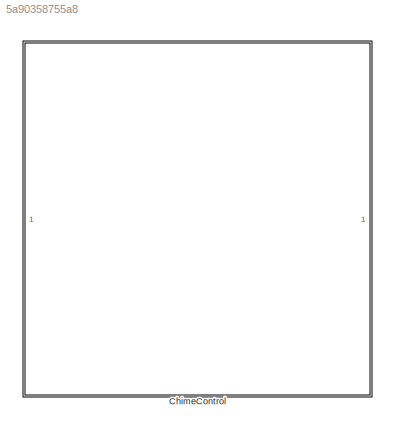
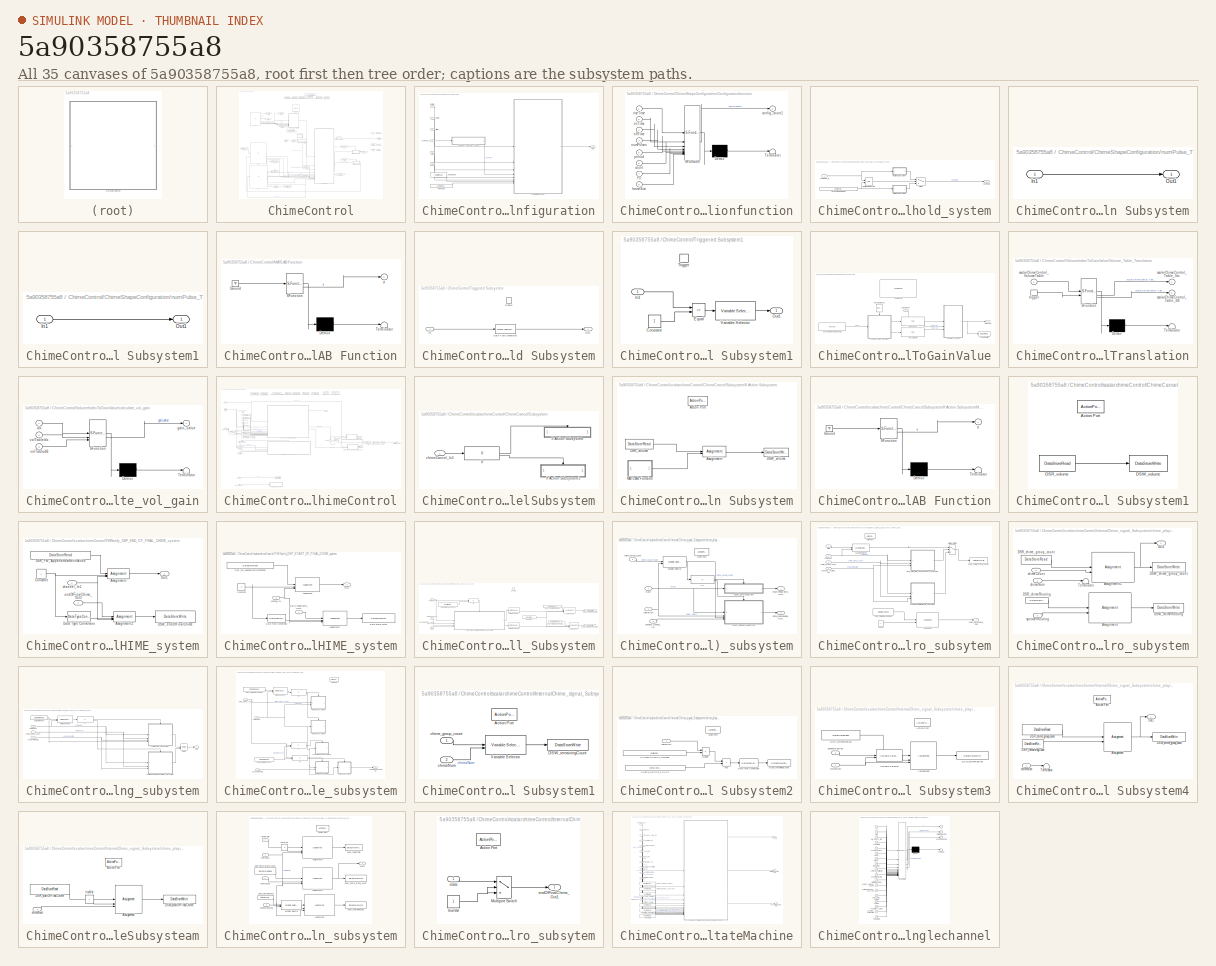
[diagram: thumbnail index - all 35 canvases of the model, root first then tree order]
MODEL slx_5a90358755a8
KIND library
CONFIG AbsTol = auto
CONFIG EnableMultiTasking = off
CONFIG FixedStep = auto
CONFIG MaxStep = auto
CONFIG MinStep = auto
CONFIG RelTol = 1e-3
CONFIG SampleTimeConstraint = Unconstrained
CONFIG SolverName = VariableStepAuto
CONFIG StartTime = 0.0
CONFIG StopTime = 10.0
BLOCK [SubSystem] ChimeControl
BLOCK [SubSystem] ChimeControl/ChimeShapeConfiguration
BLOCK [SubSystem] ChimeControl/ChimeShapeConfiguration/Configurationfunction
  ErrorFcn = Stateflow.Translate.translate
  PermitHierarchicalResolution = ExplicitOnly
  SFBlockType = MATLAB Function
  TreatAsAtomicUnit = on
BLOCK [Demux] ChimeControl/ChimeShapeConfiguration/Configurationfunction/ Demux 
  Outputs = 1
BLOCK [S-Function] ChimeControl/ChimeShapeConfiguration/Configurationfunction/ SFunction 
  EnableBusSupport = off
  FunctionName = sf_sfun
  PortCounts = [8 2]
  SFcnIsStateOwnerBlock = off
  SFunctionDeploymentMode = off
  Tag = Stateflow S-Function 16
BLOCK [Terminator] ChimeControl/ChimeShapeConfiguration/Configurationfunction/ Terminator 
BLOCK [Inport] ChimeControl/ChimeShapeConfiguration/Configurationfunction/Fs
  Port = 7
BLOCK [Outport] ChimeControl/ChimeShapeConfiguration/Configurationfunction/config_count1
  VectorParamsAs1DForOutWhenUnconnected = off
BLOCK [Inport] ChimeControl/ChimeShapeConfiguration/Configurationfunction/count
  Port = 6
BLOCK [Inport] ChimeControl/ChimeShapeConfiguration/Configurationfunction/frameSize
  Port = 8
BLOCK [Inport] ChimeControl/ChimeShapeConfiguration/Configurationfunction/numPulses
  Port = 4
BLOCK [Inport] ChimeControl/ChimeShapeConfiguration/Configurationfunction/offTime
  Port = 3
BLOCK [Inport] ChimeControl/ChimeShapeConfiguration/Configurationfunction/onTime
  Port = 2
BLOCK [Inport] ChimeControl/ChimeShapeConfiguration/Configurationfunction/period
  Port = 5
BLOCK [Inport] ChimeControl/ChimeShapeConfiguration/Configurationfunction/riseTime
BLOCK [Constant] ChimeControl/ChimeShapeConfiguration/FrameSIZE
  OutDataTypeStr = single
  Value = Config.FrameSizeSamples
BLOCK [Inport] ChimeControl/ChimeShapeConfiguration/Offtime
  Port = 3
BLOCK [Inport] ChimeControl/ChimeShapeConfiguration/Ontime
  Port = 2
BLOCK [Outport] ChimeControl/ChimeShapeConfiguration/Out1
  VectorParamsAs1DForOutWhenUnconnected = off
BLOCK [Constant] ChimeControl/ChimeShapeConfiguration/SampleRate
  OutDataTypeStr = single
  Value = Config.FsHz
BLOCK [Inport] ChimeControl/ChimeShapeConfiguration/count
  Port = 6
BLOCK [SubSystem] ChimeControl/ChimeShapeConfiguration/numPulse_Threshold_system
BLOCK [SubSystem] ChimeControl/ChimeShapeConfiguration/numPulse_Threshold_system/If Action Subsystem
  TreatAsAtomicUnit = on
BLOCK [Inport] ChimeControl/ChimeShapeConfiguration/numPulse_Threshold_system/If Action Subsystem/In1
BLOCK [Outport] ChimeControl/ChimeShapeConfiguration/numPulse_Threshold_system/If Action Subsystem/Out1
  VectorParamsAs1DForOutWhenUnconnected = off
BLOCK [SubSystem] ChimeControl/ChimeShapeConfiguration/numPulse_Threshold_system/If Action Subsystem1
  TreatAsAtomicUnit = on
BLOCK [Inport] ChimeControl/ChimeShapeConfiguration/numPulse_Threshold_system/If Action Subsystem1/In1
BLOCK [Outport] ChimeControl/ChimeShapeConfiguration/numPulse_Threshold_system/If Action Subsystem1/Out1
  VectorParamsAs1DForOutWhenUnconnected = off
BLOCK [RelationalOperator] ChimeControl/ChimeShapeConfiguration/numPulse_Threshold_system/Relational Operator
  InputSameDT = off
  OutDataTypeStr = boolean
  RndMeth = Simplest
BLOCK [Switch] ChimeControl/ChimeShapeConfiguration/numPulse_Threshold_system/Switch
  Criteria = u2 ~= 0
  InputSameDT = off
  SaturateOnIntegerOverflow = off
BLOCK [Outport] ChimeControl/ChimeShapeConfiguration/numPulse_Threshold_system/numPulse
  VectorParamsAs1DForOutWhenUnconnected = off
BLOCK [Inport] ChimeControl/ChimeShapeConfiguration/numPulse_Threshold_system/numPulse_In
BLOCK [Constant] ChimeControl/ChimeShapeConfiguration/numPulse_Threshold_system/thresholdNumPulse
  OutDataTypeStr = single
  Value = Config.ThresholdNumPulse
  VectorParams1D = off
BLOCK [Inport] ChimeControl/ChimeShapeConfiguration/numPulses
  Port = 4
BLOCK [Inport] ChimeControl/ChimeShapeConfiguration/period
  Port = 5
BLOCK [Inport] ChimeControl/ChimeShapeConfiguration/risetime
BLOCK [DataStoreMemory] ChimeControl/DSM_chimeType
  DataStoreName = chimeType
  ShowAdditionalParam = off
BLOCK [DataStoreMemory] ChimeControl/DSM_chime_group_count
  DataStoreName = chime_group_count
  InitialValue = ones(1, Config.Nch)
  ShowAdditionalParam = off
  SignalType = real
BLOCK [DataStoreMemory] ChimeControl/DSM_externalChimeVolume
  DataStoreName = externalChimeVolume
  InitialValue = zeros(1,Config.Nch)
  ShowAdditionalParam = off
BLOCK [DataStoreMemory] ChimeControl/DSM_leftLocation
  DataStoreName = leftLocation
  ShowAdditionalParam = off
BLOCK [DataStoreMemory] ChimeControl/DSM_rightLocation
  DataStoreName = rightLocation
  ShowAdditionalParam = off
BLOCK [DataStoreMemory] ChimeControl/DSM_volume
  DataStoreName = volume
  InitialValue = Config.Volume
  ShowAdditionalParam = off
  SignalType = real
BLOCK [DataStoreRead] ChimeControl/DSR_chime_group_count
  DataStoreName = chime_group_count
  IndexOptions = Index vector (dialog)
  Indices = 1
  OutputSizes = 1
BLOCK [DataStoreWrite] ChimeControl/DSW_chime_group_count
  DataStoreName = chime_group_count
  IndexOptions = Index vector (dialog)
  Indices = 1
  OutputSizes = 1
BLOCK [DataTypeConversion] ChimeControl/Data Type Conversion
  OutDataTypeStr = single
  RndMeth = Floor
  SaturateOnIntegerOverflow = off
BLOCK [Reference] ChimeControl/FeaturePath  REF=FeaturePath/FeaturePath
  SourceBlock = FeaturePath/FeaturePath
  SourceType = Talaria Feature Path
BLOCK [From] ChimeControl/From
  GotoTag = fallTime
BLOCK [From] ChimeControl/From1
  GotoTag = volume
BLOCK [From] ChimeControl/From2
  GotoTag = RTC2_check_done
BLOCK [From] ChimeControl/From3
  GotoTag = chimeEndNotification
BLOCK [From] ChimeControl/From4
  GotoTag = playback_NTF_done
BLOCK [From] ChimeControl/From5
  GotoTag = riseTime
BLOCK [From] ChimeControl/From6
  GotoTag = numGroupCount
BLOCK [From] ChimeControl/From7
  GotoTag = chimeType
BLOCK [Goto] ChimeControl/Goto
  GotoTag = numGroupCount
BLOCK [Goto] ChimeControl/Goto1
  GotoTag = volume
BLOCK [Goto] ChimeControl/Goto2
  GotoTag = chimeType
BLOCK [Goto] ChimeControl/Goto3
  GotoTag = RTC2_check_done
BLOCK [Goto] ChimeControl/Goto4
  GotoTag = chimeEndNotification
BLOCK [Goto] ChimeControl/Goto5
  GotoTag = playback_NTF_done
BLOCK [Goto] ChimeControl/Goto6
  GotoTag = riseTime
BLOCK [Goto] ChimeControl/Goto7
  GotoTag = fallTime
BLOCK [Reference] ChimeControl/HandyDefaultConfigFile  REF=HandyTextFile/HandyTextFile
  SourceBlock = HandyTextFile/HandyTextFile
  SourceType = Talaria Handy Text File
BLOCK [SubSystem] ChimeControl/MATLAB Function
  ErrorFcn = Stateflow.Translate.translate
  PermitHierarchicalResolution = ExplicitOnly
  SFBlockType = MATLAB Function
  TreatAsAtomicUnit = on
BLOCK [Demux] ChimeControl/MATLAB Function/ Demux 
  Outputs = 1
BLOCK [Ground] ChimeControl/MATLAB Function/ Ground 
BLOCK [S-Function] ChimeControl/MATLAB Function/ SFunction 
  EnableBusSupport = off
  FunctionName = sf_sfun
  Parameters = nch
  PortCounts = [1 2]
  SFcnIsStateOwnerBlock = off
  SFunctionDeploymentMode = off
  Tag = Stateflow S-Function 4
BLOCK [Terminator] ChimeControl/MATLAB Function/ Terminator 
BLOCK [Outport] ChimeControl/MATLAB Function/y
BLOCK [Reference] ChimeControl/RTC1  REF=RTC/RTC
  SourceBlock = RTC/RTC
  SourceType = Talaria RTC Receive
BLOCK [Reference] ChimeControl/RTC2  REF=RTC/RTC
  SourceBlock = RTC/RTC
  SourceType = Talaria RTC Receive
BLOCK [Reference] ChimeControl/RTC3  REF=RTC/RTC
  SourceBlock = RTC/RTC
  SourceType = Talaria RTC Receive
BLOCK [Outport] ChimeControl/Scalar_Control_Output
  Port = 2
  VectorParamsAs1DForOutWhenUnconnected = off
BLOCK [Math] ChimeControl/Transpose
  Operator = transpose
  SignedPower = on
BLOCK [Math] ChimeControl/Transpose1
  Operator = transpose
  SignedPower = on
BLOCK [Math] ChimeControl/Transpose2
  Operator = transpose
  SignedPower = on
BLOCK [SubSystem] ChimeControl/Triggered Subsystem
  TreatAsAtomicUnit = on
BLOCK [DataTypeConversion] ChimeControl/Triggered Subsystem/Data Type Conversion
  OutDataTypeStr = int32
  RndMeth = Floor
  SaturateOnIntegerOverflow = off
BLOCK [EnablePort] ChimeControl/Triggered Subsystem/Enable
BLOCK [Inport] ChimeControl/Triggered Subsystem/In1
BLOCK [Outport] ChimeControl/Triggered Subsystem/Out1
  VectorParamsAs1DForOutWhenUnconnected = off
BLOCK [SubSystem] ChimeControl/Triggered Subsystem1
  TreatAsAtomicUnit = on
BLOCK [Constant] ChimeControl/Triggered Subsystem1/Constant
BLOCK [RelationalOperator] ChimeControl/Triggered Subsystem1/Equal
  InputSameDT = off
  Operator = ==
  OutDataTypeStr = boolean
  RndMeth = Simplest
BLOCK [Inport] ChimeControl/Triggered Subsystem1/In1
BLOCK [Outport] ChimeControl/Triggered Subsystem1/Out1
  VectorParamsAs1DForOutWhenUnconnected = off
BLOCK [TriggerPort] ChimeControl/Triggered Subsystem1/Trigger
  StatesWhenEnabling = held
  TriggerType = function-call
  VariantControl = Variant
BLOCK [Reference] ChimeControl/Triggered Subsystem1/Variable Selector  REF=dspindex/Variable
Selector
  SourceBlock = dspindex/Variable\nSelector
  SourceType = Variable Selector
BLOCK [SubSystem] ChimeControl/VolumeIndexToGainValue
BLOCK [DataStoreWrite] ChimeControl/VolumeIndexToGainValue/Data Store Write
  DataStoreName = volume
  IndexOptions = Index vector (dialog)
  Indices = 1
  OutputSizes = 1
BLOCK [Reference] ChimeControl/VolumeIndexToGainValue/FeaturePath  REF=FeaturePath/FeaturePath
  SourceBlock = FeaturePath/FeaturePath
  SourceType = Talaria Feature Path
BLOCK [Outport] ChimeControl/VolumeIndexToGainValue/Gainvalue
  VectorParamsAs1DForOutWhenUnconnected = off
BLOCK [Reference] ChimeControl/VolumeIndexToGainValue/TOP_GainDB  REF=TOP/TOP
  SourceBlock = TOP/TOP
  SourceType = Talaria Target Overlay Parameter
BLOCK [Reference] ChimeControl/VolumeIndexToGainValue/TOP_Index  REF=TOP/TOP
  SourceBlock = TOP/TOP
  SourceType = Talaria Target Overlay Parameter
BLOCK [Reference] ChimeControl/VolumeIndexToGainValue/TranslateTrigger1  REF=TuneVar/TranslateTrigger
  NameLocation = left
  SourceBlock = TuneVar/TranslateTrigger
  SourceType = Talaria Translate Trigger
BLOCK [Reference] ChimeControl/VolumeIndexToGainValue/TuneVarChimeVolumeTable  REF=TuneVar/TuneVar
  Description = <HTML>Gain table maps index to gain.\nThe index values are <FONT color="red">normalized</Font> floats between 0 and 1 while the gains are in dB (i.e. 0 implies no attenuation).\n</html>
  SourceBlock = TuneVar/TuneVar
  SourceType = Talaria Tune Variable
BLOCK [Inport] ChimeControl/VolumeIndexToGainValue/VolumeIndex
BLOCK [SubSystem] ChimeControl/VolumeIndexToGainValue/Volume_Table_Translation
  ErrorFcn = Stateflow.Translate.translate
  PermitHierarchicalResolution = ExplicitOnly
  SFBlockType = MATLAB Function
  TreatAsAtomicUnit = on
BLOCK [Demux] ChimeControl/VolumeIndexToGainValue/Volume_Table_Translation/ Demux 
  Outputs = 1
BLOCK [S-Function] ChimeControl/VolumeIndexToGainValue/Volume_Table_Translation/ SFunction 
  EnableBusSupport = off
  FunctionName = sf_sfun
  PortCounts = [2 3]
  SFcnIsStateOwnerBlock = off
  SFunctionDeploymentMode = off
  Tag = Stateflow S-Function 1
BLOCK [Terminator] ChimeControl/VolumeIndexToGainValue/Volume_Table_Translation/ Terminator 
BLOCK [Outport] ChimeControl/VolumeIndexToGainValue/Volume_Table_Translation/scalarChimeControl_Table_Idx
  VectorParamsAs1DForOutWhenUnconnected = off
BLOCK [Outport] ChimeControl/VolumeIndexToGainValue/Volume_Table_Translation/scalarChimeControl_Table_dB
  Port = 2
  VectorParamsAs1DForOutWhenUnconnected = off
BLOCK [Inport] ChimeControl/VolumeIndexToGainValue/Volume_Table_Translation/scalarChimeControl_VolumeTable
BLOCK [TriggerPort] ChimeControl/VolumeIndexToGainValue/Volume_Table_Translation/trigger
  ShowOutputPort = on
  StatesWhenEnabling = held
  TriggerType = function-call
  VariantControl = (inherit)
BLOCK [SubSystem] ChimeControl/VolumeIndexToGainValue/calculate_vol_gain
  ErrorFcn = Stateflow.Translate.translate
  PermitHierarchicalResolution = ExplicitOnly
  SFBlockType = MATLAB Function
  TreatAsAtomicUnit = on
BLOCK [Demux] ChimeControl/VolumeIndexToGainValue/calculate_vol_gain/ Demux 
  Outputs = 1
BLOCK [S-Function] ChimeControl/VolumeIndexToGainValue/calculate_vol_gain/ SFunction 
  EnableBusSupport = off
  FunctionName = sf_sfun
  PortCounts = [3 2]
  SFcnIsStateOwnerBlock = off
  SFunctionDeploymentMode = off
  Tag = Stateflow S-Function 2
BLOCK [Terminator] ChimeControl/VolumeIndexToGainValue/calculate_vol_gain/ Terminator 
BLOCK [Outport] ChimeControl/VolumeIndexToGainValue/calculate_vol_gain/gain_value
  VectorParamsAs1DForOutWhenUnconnected = off
BLOCK [Inport] ChimeControl/VolumeIndexToGainValue/calculate_vol_gain/idx
BLOCK [Inport] ChimeControl/VolumeIndexToGainValue/calculate_vol_gain/volTableIdx
  Port = 2
BLOCK [Inport] ChimeControl/VolumeIndexToGainValue/calculate_vol_gain/volTabledB
  Port = 3
BLOCK [Outport] ChimeControl/chimeType_Out
  VectorParamsAs1DForOutWhenUnconnected = off
BLOCK [Outport] ChimeControl/fallTime_Out
  Port = 4
  VectorParamsAs1DForOutWhenUnconnected = off
BLOCK [Outport] ChimeControl/riseTime_Out
  Port = 3
  VectorParamsAs1DForOutWhenUnconnected = off
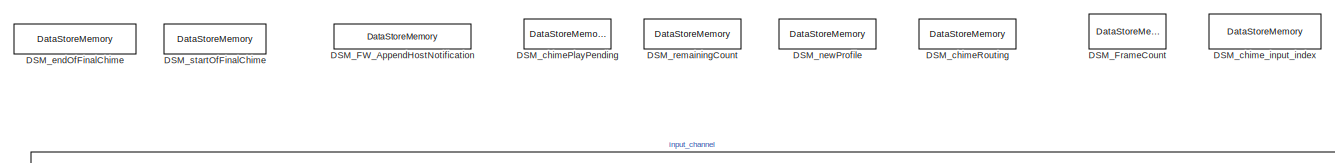
[diagram: ChimeControl/scalarchimeControl - part 1/4, top center region]
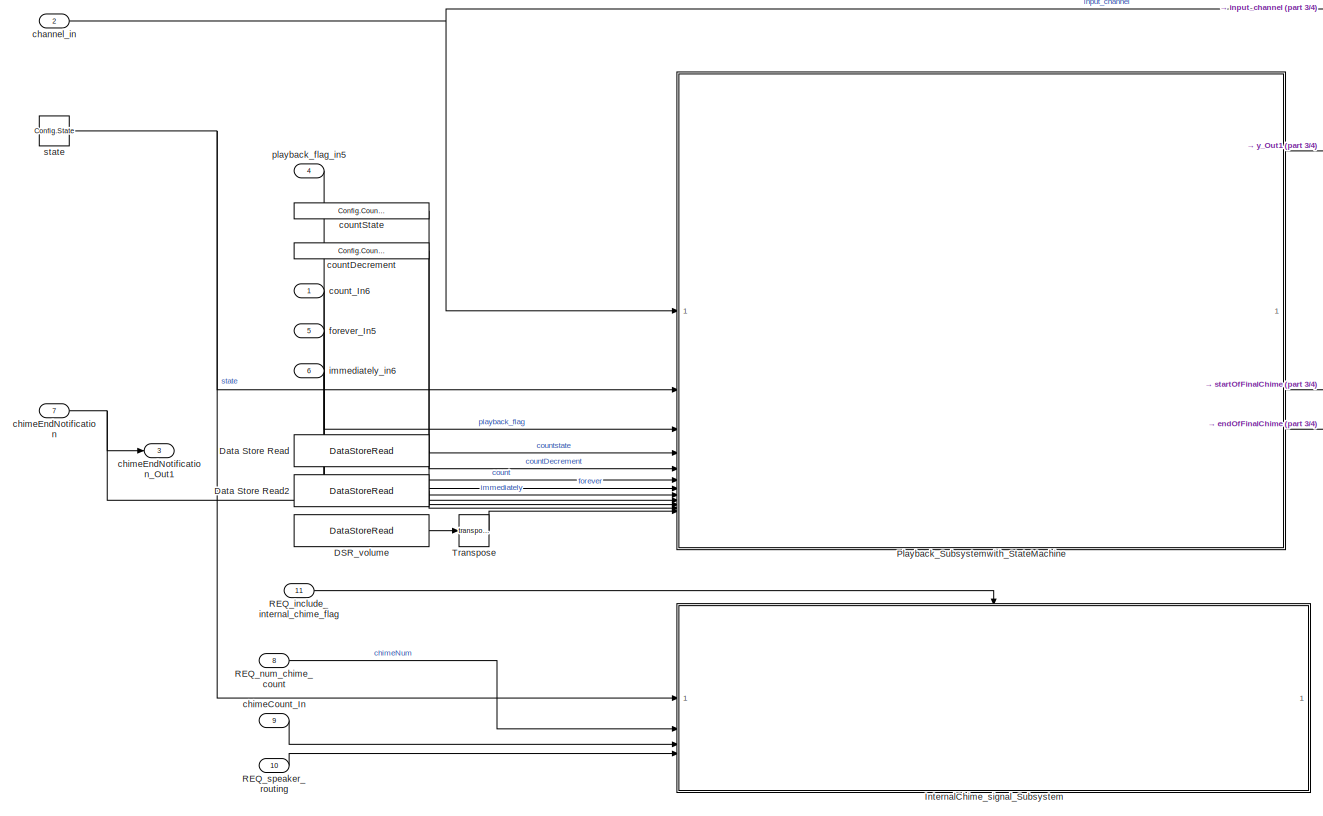
[diagram: ChimeControl/scalarchimeControl - part 2/4, middle left region]
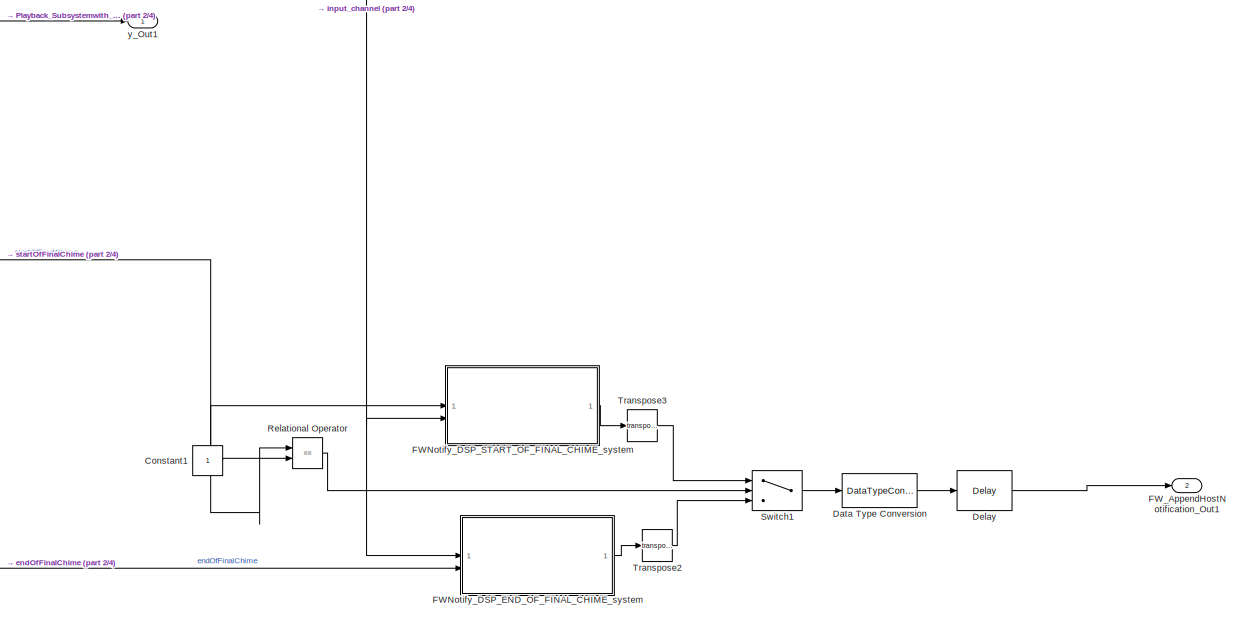
[diagram: ChimeControl/scalarchimeControl - part 3/4, middle right region]
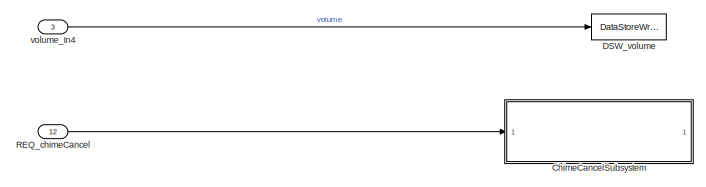
[diagram: ChimeControl/scalarchimeControl - part 4/4, bottom left region]
BLOCK [SubSystem] ChimeControl/scalarchimeControl
BLOCK [SubSystem] ChimeControl/scalarchimeControl/ChimeCancelSubsystem
BLOCK [If] ChimeControl/scalarchimeControl/ChimeCancelSubsystem/If
  IfExpression = u1 == 1
BLOCK [SubSystem] ChimeControl/scalarchimeControl/ChimeCancelSubsystem/If Action Subsystem
  TreatAsAtomicUnit = on
BLOCK [ActionPort] ChimeControl/scalarchimeControl/ChimeCancelSubsystem/If Action Subsystem/Action Port
BLOCK [Assignment] ChimeControl/scalarchimeControl/ChimeCancelSubsystem/If Action Subsystem/Assignment
  DiagnosticForDimensions = Warning
  IndexOptions = Assign all
  Indices = 1
  OutputSizes = 1
BLOCK [DataStoreRead] ChimeControl/scalarchimeControl/ChimeCancelSubsystem/If Action Subsystem/DSR_volume
  DataStoreName = volume
  IndexOptions = Index vector (dialog)
  Indices = 1
  OutputSizes = 1
BLOCK [DataStoreWrite] ChimeControl/scalarchimeControl/ChimeCancelSubsystem/If Action Subsystem/DSW_volume
  DataStoreName = volume
  IndexOptions = Index vector (dialog)
  Indices = 1
  OutputSizes = 1
BLOCK [SubSystem] ChimeControl/scalarchimeControl/ChimeCancelSubsystem/If Action Subsystem/MATLAB Function
  ErrorFcn = Stateflow.Translate.translate
  PermitHierarchicalResolution = ExplicitOnly
  SFBlockType = MATLAB Function
  TreatAsAtomicUnit = on
BLOCK [Demux] ChimeControl/scalarchimeControl/ChimeCancelSubsystem/If Action Subsystem/MATLAB Function/ Demux 
  Outputs = 1
BLOCK [Ground] ChimeControl/scalarchimeControl/ChimeCancelSubsystem/If Action Subsystem/MATLAB Function/ Ground 
BLOCK [S-Function] ChimeControl/scalarchimeControl/ChimeCancelSubsystem/If Action Subsystem/MATLAB Function/ SFunction 
  EnableBusSupport = off
  FunctionName = sf_sfun
  Parameters = nch
  PortCounts = [1 2]
  SFcnIsStateOwnerBlock = off
  SFunctionDeploymentMode = off
  Tag = Stateflow S-Function 5
BLOCK [Terminator] ChimeControl/scalarchimeControl/ChimeCancelSubsystem/If Action Subsystem/MATLAB Function/ Terminator 
BLOCK [Outport] ChimeControl/scalarchimeControl/ChimeCancelSubsystem/If Action Subsystem/MATLAB Function/y
BLOCK [SubSystem] ChimeControl/scalarchimeControl/ChimeCancelSubsystem/If Action Subsystem1
  TreatAsAtomicUnit = on
BLOCK [ActionPort] ChimeControl/scalarchimeControl/ChimeCancelSubsystem/If Action Subsystem1/Action Port
BLOCK [DataStoreRead] ChimeControl/scalarchimeControl/ChimeCancelSubsystem/If Action Subsystem1/DSR_volume
  DataStoreName = volume
  IndexOptions = Index vector (dialog)
  Indices = 1
  OutputSizes = 1
BLOCK [DataStoreWrite] ChimeControl/scalarchimeControl/ChimeCancelSubsystem/If Action Subsystem1/DSW_volume
  DataStoreName = volume
  IndexOptions = Index vector (dialog)
  Indices = 1
  OutputSizes = 1
BLOCK [Inport] ChimeControl/scalarchimeControl/ChimeCancelSubsystem/chimeCancel_In1
BLOCK [Constant] ChimeControl/scalarchimeControl/Constant1
  OutDataTypeStr = single
BLOCK [DataStoreMemory] ChimeControl/scalarchimeControl/DSM_FW_AppendHostNotification
  DataStoreName = FW_AppendHostNotification
  InitialValue = zeros(1,Config.Nch)
  ShowAdditionalParam = off
BLOCK [DataStoreMemory] ChimeControl/scalarchimeControl/DSM_FrameCount
  DataStoreName = CS_FrameCount
  OutDataTypeStr = int32
  ShowAdditionalParam = off
  SignalType = real
BLOCK [DataStoreMemory] ChimeControl/scalarchimeControl/DSM_chimePlayPending
  DataStoreName = chimePlayPending
  InitialValue = zeros(1,Config.Nch)
  OutDataTypeStr = int32
  ShowAdditionalParam = off
  SignalType = real
BLOCK [DataStoreMemory] ChimeControl/scalarchimeControl/DSM_chimeRouting
  DataStoreName = chimeRouting
  InitialValue = zeros(1,Config.Nch)
  OutDataTypeStr = int32
  ShowAdditionalParam = off
  SignalType = real
BLOCK [DataStoreMemory] ChimeControl/scalarchimeControl/DSM_chime_input_index
  DataStoreName = chime_input_index
  InitialValue = Config.ChimeInputIndex
  ShowAdditionalParam = off
BLOCK [DataStoreMemory] ChimeControl/scalarchimeControl/DSM_endOfFinalChime
  DataStoreName = endOfFinalChime
  InitialValue = zeros(1,Config.Nch)
  OutDataTypeStr = boolean
  ShowAdditionalParam = off
  VectorParams1D = off
BLOCK [DataStoreMemory] ChimeControl/scalarchimeControl/DSM_newProfile
  DataStoreName = newProfile
  OutDataTypeStr = int32
  ShowAdditionalParam = off
  SignalType = real
BLOCK [DataStoreMemory] ChimeControl/scalarchimeControl/DSM_remainingCount
  DataStoreName = remainingCount
  OutDataTypeStr = int32
  ShowAdditionalParam = off
  SignalType = real
BLOCK [DataStoreMemory] ChimeControl/scalarchimeControl/DSM_startOfFinalChime
  DataStoreName = startOfFinalChime
  InitialValue = zeros(1,Config.Nch)
  OutDataTypeStr = boolean
  ShowAdditionalParam = off
  SignalType = real
  VectorParams1D = off
BLOCK [DataStoreRead] ChimeControl/scalarchimeControl/DSR_volume
  DataStoreName = volume
  IndexOptions = Index vector (dialog)
  Indices = 1
  OutputSizes = 1
BLOCK [DataStoreWrite] ChimeControl/scalarchimeControl/DSW_volume
  DataStoreName = volume
  IndexOptions = Index vector (dialog)
  Indices = 1
  OutputSizes = 1
BLOCK [DataStoreRead] ChimeControl/scalarchimeControl/Data Store Read
  DataStoreName = endOfFinalChime
  IndexOptions = Index vector (dialog)
  Indices = 1
  OutputSizes = 1
BLOCK [DataStoreRead] ChimeControl/scalarchimeControl/Data Store Read2
  DataStoreName = startOfFinalChime
  IndexOptions = Index vector (dialog)
  Indices = 1
  OutputSizes = 1
BLOCK [DataTypeConversion] ChimeControl/scalarchimeControl/Data Type Conversion
  OutDataTypeStr = boolean
  RndMeth = Floor
  SaturateOnIntegerOverflow = off
BLOCK [Delay] ChimeControl/scalarchimeControl/Delay
  DelayLength = 1
  InputPortMap = u0
  InputProcessing = Columns as channels (frame based)
BLOCK [SubSystem] ChimeControl/scalarchimeControl/FWNotify_DSP_END_OF_FINAL_CHIME_system
  TreatAsAtomicUnit = on
BLOCK [Assignment] ChimeControl/scalarchimeControl/FWNotify_DSP_END_OF_FINAL_CHIME_system/Assignment
  DiagnosticForDimensions = Warning
  IndexOptions = Index vector (port)
  Indices = 1
  OutputSizes = 1
BLOCK [Assignment] ChimeControl/scalarchimeControl/FWNotify_DSP_END_OF_FINAL_CHIME_system/Assignment1
  DiagnosticForDimensions = Warning
  IndexOptions = Index vector (port)
  Indices = 1
  OutputSizes = 1
BLOCK [Constant] ChimeControl/scalarchimeControl/FWNotify_DSP_END_OF_FINAL_CHIME_system/Constant
  OutDataTypeStr = single
  VectorParams1D = off
BLOCK [DataStoreRead] ChimeControl/scalarchimeControl/FWNotify_DSP_END_OF_FINAL_CHIME_system/DSR_FW_AppendHostNotification
  DataStoreName = FW_AppendHostNotification
  IndexOptions = Index vector (dialog)
  Indices = 1
  OutputSizes = 1
BLOCK [DataStoreWrite] ChimeControl/scalarchimeControl/FWNotify_DSP_END_OF_FINAL_CHIME_system/DSW_endOfFinalChime
  DataStoreName = endOfFinalChime
  IndexOptions = Index vector (dialog)
  Indices = 1
  OutputSizes = 1
BLOCK [DataTypeConversion] ChimeControl/scalarchimeControl/FWNotify_DSP_END_OF_FINAL_CHIME_system/Data Type Conversion
  OutDataTypeStr = boolean
  RndMeth = Floor
  SaturateOnIntegerOverflow = off
BLOCK [Outport] ChimeControl/scalarchimeControl/FWNotify_DSP_END_OF_FINAL_CHIME_system/Out1
  VectorParamsAs1DForOutWhenUnconnected = off
BLOCK [Inport] ChimeControl/scalarchimeControl/FWNotify_DSP_END_OF_FINAL_CHIME_system/channel_In1
BLOCK [Inport] ChimeControl/scalarchimeControl/FWNotify_DSP_END_OF_FINAL_CHIME_system/endOfFinalChime_Out3
  Port = 2
BLOCK [SubSystem] ChimeControl/scalarchimeControl/FWNotify_DSP_START_OF_FINAL_CHIME_system
  TreatAsAtomicUnit = on
BLOCK [Assignment] ChimeControl/scalarchimeControl/FWNotify_DSP_START_OF_FINAL_CHIME_system/Assignment
  DiagnosticForDimensions = Warning
  IndexOptions = Index vector (port)
  Indices = 1
  OutputSizes = 1
BLOCK [Assignment] ChimeControl/scalarchimeControl/FWNotify_DSP_START_OF_FINAL_CHIME_system/Assignment1
  DiagnosticForDimensions = Warning
  IndexOptions = Index vector (port)
  Indices = 1
  OutputSizes = 1
BLOCK [Constant] ChimeControl/scalarchimeControl/FWNotify_DSP_START_OF_FINAL_CHIME_system/Constant
  OutDataTypeStr = single
  Value = 0
BLOCK [DataStoreRead] ChimeControl/scalarchimeControl/FWNotify_DSP_START_OF_FINAL_CHIME_system/DSR_FW_AppendHostNotification
  DataStoreName = FW_AppendHostNotification
  IndexOptions = Index vector (dialog)
  Indices = 1
  OutputSizes = 1
BLOCK [DataStoreWrite] ChimeControl/scalarchimeControl/FWNotify_DSP_START_OF_FINAL_CHIME_system/Data Store Write
  DataStoreName = startOfFinalChime
  IndexOptions = Index vector (dialog)
  Indices = 1
  OutputSizes = 1
BLOCK [DataTypeConversion] ChimeControl/scalarchimeControl/FWNotify_DSP_START_OF_FINAL_CHIME_system/Data Type Conversion
  OutDataTypeStr = boolean
  RndMeth = Floor
  SaturateOnIntegerOverflow = off
BLOCK [Outport] ChimeControl/scalarchimeControl/FWNotify_DSP_START_OF_FINAL_CHIME_system/Out1
  VectorParamsAs1DForOutWhenUnconnected = off
BLOCK [Inport] ChimeControl/scalarchimeControl/FWNotify_DSP_START_OF_FINAL_CHIME_system/channel_In1
  Port = 2
BLOCK [Inport] ChimeControl/scalarchimeControl/FWNotify_DSP_START_OF_FINAL_CHIME_system/startOfFinalChime_Out2
BLOCK [Outport] ChimeControl/scalarchimeControl/FW_AppendHostNotification_Out1
  Port = 2
  VectorParamsAs1DForOutWhenUnconnected = off
BLOCK [SubSystem] ChimeControl/scalarchimeControl/InternalChime_signal_Subsystem
BLOCK [Assignment] ChimeControl/scalarchimeControl/InternalChime_signal_Subsystem/Assignment
  DiagnosticForDimensions = Warning
  IndexOptions = Index vector (port)
  Indices = 1
  OutputSizes = 1
BLOCK [Assignment] ChimeControl/scalarchimeControl/InternalChime_signal_Subsystem/Assignment1
  DiagnosticForDimensions = Warning
  IndexOptions = Index vector (port)
  Indices = 1
  OutputSizes = 1
BLOCK [Constant] ChimeControl/scalarchimeControl/InternalChime_signal_Subsystem/Constant
  OutDataTypeStr = single
  Value = [1:Config.NumInternalChime]
BLOCK [DataStoreRead] ChimeControl/scalarchimeControl/InternalChime_signal_Subsystem/DSR_chimePlayPending
  DataStoreName = chimePlayPending
  IndexOptions = Index vector (dialog)
  Indices = 1
  OutputSizes = 1
BLOCK [DataStoreRead] ChimeControl/scalarchimeControl/InternalChime_signal_Subsystem/DSR_endOfFinalChime
  DataStoreName = endOfFinalChime
  IndexOptions = Index vector (dialog)
  Indices = 1
  OutputSizes = 1
BLOCK [DataStoreWrite] ChimeControl/scalarchimeControl/InternalChime_signal_Subsystem/DSW_chimePlayPending
  DataStoreName = chimePlayPending
  IndexOptions = Index vector (dialog)
  Indices = 1
  OutputSizes = 1
BLOCK [DataStoreWrite] ChimeControl/scalarchimeControl/InternalChime_signal_Subsystem/DSW_endOfFinalChime
  DataStoreName = endOfFinalChime
  IndexOptions = Index vector (dialog)
  Indices = 1
  OutputSizes = 1
BLOCK [EnablePort] ChimeControl/scalarchimeControl/InternalChime_signal_Subsystem/Enable
BLOCK [If] ChimeControl/scalarchimeControl/InternalChime_signal_Subsystem/If3
  IfExpression = u1 <= u2
  NumInputs = 2
  ShowElse = off
BLOCK [Reference] ChimeControl/scalarchimeControl/InternalChime_signal_Subsystem/Variable Selector  REF=dspindex/Variable
Selector
  SourceBlock = dspindex/Variable\nSelector
  SourceType = Variable Selector
BLOCK [Reference] ChimeControl/scalarchimeControl/InternalChime_signal_Subsystem/Variable Selector1  REF=dspindex/Variable
Selector
  SourceBlock = dspindex/Variable\nSelector
  SourceType = Variable Selector
BLOCK [Inport] ChimeControl/scalarchimeControl/InternalChime_signal_Subsystem/chimeCount_In4
  Port = 3
BLOCK [Inport] ChimeControl/scalarchimeControl/InternalChime_signal_Subsystem/chimeNum
  Port = 2
BLOCK [SubSystem] ChimeControl/scalarchimeControl/InternalChime_signal_Subsystem/chime_playing_(internalChime)_subsystem
BLOCK [ActionPort] ChimeControl/scalarchimeControl/InternalChime_signal_Subsystem/chime_playing_(internalChime)_subsystem/Action Port
BLOCK [If] ChimeControl/scalarchimeControl/InternalChime_signal_Subsystem/chime_playing_(internalChime)_subsystem/If1
  IfExpression = u1 == 0
BLOCK [Reference] ChimeControl/scalarchimeControl/InternalChime_signal_Subsystem/chime_playing_(internalChime)_subsystem/Variable Selector  REF=dspindex/Variable
Selector
  SourceBlock = dspindex/Variable\nSelector
  SourceType = Variable Selector
BLOCK [Inport] ChimeControl/scalarchimeControl/InternalChime_signal_Subsystem/chime_playing_(internalChime)_subsystem/chimeNum
BLOCK [Inport] ChimeControl/scalarchimeControl/InternalChime_signal_Subsystem/chime_playing_(internalChime)_subsystem/chime_group_count
  Port = 2
BLOCK [Outport] ChimeControl/scalarchimeControl/InternalChime_signal_Subsystem/chime_playing_(internalChime)_subsystem/chime_playpending_Out1
  Port = 2
  VectorParamsAs1DForOutWhenUnconnected = off
BLOCK [SubSystem] ChimeControl/scalarchimeControl/InternalChime_signal_Subsystem/chime_playing_(internalChime)_subsystem/count_nonzero_subsytem
  TreatAsAtomicUnit = on
BLOCK [ActionPort] ChimeControl/scalarchimeControl/InternalChime_signal_Subsystem/chime_playing_(internalChime)_subsystem/count_nonzero_subsytem/Action Port
BLOCK [Assignment] ChimeControl/scalarchimeControl/InternalChime_signal_Subsystem/chime_playing_(internalChime)_subsystem/count_nonzero_subsytem/Assignment
  DiagnosticForDimensions = Warning
  IndexOptions = Assign all
  Indices = 1
  OutputSizes = 1
BLOCK [DataStoreRead] ChimeControl/scalarchimeControl/InternalChime_signal_Subsystem/chime_playing_(internalChime)_subsystem/count_nonzero_subsytem/DSR_chimePlayPending
  DataStoreName = chimePlayPending
  IndexOptions = Index vector (dialog)
  Indices = 1
  OutputSizes = 1
BLOCK [DataStoreWrite] ChimeControl/scalarchimeControl/InternalChime_signal_Subsystem/chime_playing_(internalChime)_subsystem/count_nonzero_subsytem/DSW_chime_group_count
  DataStoreName = chime_group_count
  IndexOptions = Index vector (dialog)
  Indices = 1
  OutputSizes = 1
BLOCK [SubSystem] ChimeControl/scalarchimeControl/InternalChime_signal_Subsystem/chime_playing_(internalChime)_subsystem/count_nonzero_subsytem/IDLE_state_with_count_nonzero_subystem
  TreatAsAtomicUnit = on
BLOCK [Assignment] ChimeControl/scalarchimeControl/InternalChime_signal_Subsystem/chime_playing_(internalChime)_subsystem/count_nonzero_subsytem/IDLE_state_with_count_nonzero_subystem/Assignment
  DiagnosticForDimensions = Warning
  IndexOptions = Assign all
  Indices = 1
  OutputSizes = 1
BLOCK [Assignment] ChimeControl/scalarchimeControl/InternalChime_signal_Subsystem/chime_playing_(internalChime)_subsystem/count_nonzero_subsytem/IDLE_state_with_count_nonzero_subystem/Assignment1
  DiagnosticForDimensions = Warning
  IndexOptions = Assign all
  Indices = 1
  OutputSizes = 1
BLOCK [DataStoreRead] ChimeControl/scalarchimeControl/InternalChime_signal_Subsystem/chime_playing_(internalChime)_subsystem/count_nonzero_subsytem/IDLE_state_with_count_nonzero_subystem/DSR_chimeRouting
  DataStoreName = chimeRouting
  IndexOptions = Index vector (dialog)
  Indices = 1
  OutputSizes = 1
BLOCK [DataStoreRead] ChimeControl/scalarchimeControl/InternalChime_signal_Subsystem/chime_playing_(internalChime)_subsystem/count_nonzero_subsytem/IDLE_state_with_count_nonzero_subystem/DSR_chime_group_count
  DataStoreName = chime_group_count
  IndexOptions = Index vector (dialog)
  Indices = 1
  OutputSizes = 1
BLOCK [DataStoreWrite] ChimeControl/scalarchimeControl/InternalChime_signal_Subsystem/chime_playing_(internalChime)_subsystem/count_nonzero_subsytem/IDLE_state_with_count_nonzero_subystem/DSW_chimeRouting 
  DataStoreName = chimeRouting
  IndexOptions = Index vector (dialog)
  Indices = 1
  OutputSizes = 1
BLOCK [DataStoreWrite] ChimeControl/scalarchimeControl/InternalChime_signal_Subsystem/chime_playing_(internalChime)_subsystem/count_nonzero_subsytem/IDLE_state_with_count_nonzero_subystem/DSW_chime_group_count
  DataStoreName = chime_group_count
  IndexOptions = Index vector (dialog)
  Indices = 1
  OutputSizes = 1
BLOCK [Outport] ChimeControl/scalarchimeControl/InternalChime_signal_Subsystem/chime_playing_(internalChime)_subsystem/count_nonzero_subsytem/IDLE_state_with_count_nonzero_subystem/Out1
  VectorParamsAs1DForOutWhenUnconnected = off
BLOCK [Terminator] ChimeControl/scalarchimeControl/InternalChime_signal_Subsystem/chime_playing_(internalChime)_subsystem/count_nonzero_subsytem/IDLE_state_with_count_nonzero_subystem/Terminator
BLOCK [Inport] ChimeControl/scalarchimeControl/InternalChime_signal_Subsystem/chime_playing_(internalChime)_subsystem/count_nonzero_subsytem/IDLE_state_with_count_nonzero_subystem/chimeCount
  Port = 2
BLOCK [Inport] ChimeControl/scalarchimeControl/InternalChime_signal_Subsystem/chime_playing_(internalChime)_subsystem/count_nonzero_subsytem/IDLE_state_with_count_nonzero_subystem/chimeNum
BLOCK [Inport] ChimeControl/scalarchimeControl/InternalChime_signal_Subsystem/chime_playing_(internalChime)_subsystem/count_nonzero_subsytem/IDLE_state_with_count_nonzero_subystem/speakerRouting
  Port = 3
BLOCK [MultiPortSwitch] ChimeControl/scalarchimeControl/InternalChime_signal_Subsystem/chime_playing_(internalChime)_subsystem/count_nonzero_subsytem/Multiport Switch
  DataPortOrder = Zero-based contiguous
  InputSameDT = off
  Inputs = 2
  SaturateOnIntegerOverflow = off
  zeroidx = on
BLOCK [Reference] ChimeControl/scalarchimeControl/InternalChime_signal_Subsystem/chime_playing_(internalChime)_subsystem/count_nonzero_subsytem/Variable Selector  REF=dspindex/Variable
Selector
  SourceBlock = dspindex/Variable\nSelector
  SourceType = Variable Selector
BLOCK [Inport] ChimeControl/scalarchimeControl/InternalChime_signal_Subsystem/chime_playing_(internalChime)_subsystem/count_nonzero_subsytem/chimeNum
  Port = 2
BLOCK [Inport] ChimeControl/scalarchimeControl/InternalChime_signal_Subsystem/chime_playing_(internalChime)_subsystem/count_nonzero_subsytem/chime_group_count
  Port = 3
BLOCK [Outport] ChimeControl/scalarchimeControl/InternalChime_signal_Subsystem/chime_playing_(internalChime)_subsystem/count_nonzero_subsytem/chime_playpending_Out2
  VectorParamsAs1DForOutWhenUnconnected = off
BLOCK [SubSystem] ChimeControl/scalarchimeControl/InternalChime_signal_Subsystem/chime_playing_(internalChime)_subsystem/count_nonzero_subsytem/previousChimePlaying_subystem
  TreatAsAtomicUnit = on
BLOCK [DataStoreRead] ChimeControl/scalarchimeControl/InternalChime_signal_Subsystem/chime_playing_(internalChime)_subsystem/count_nonzero_subsytem/previousChimePlaying_subystem/Data Store Read
  DataStoreName = newProfile
  IndexOptions = Index vector (dialog)
  Indices = 1
  OutputSizes = 1
BLOCK [If] ChimeControl/scalarchimeControl/InternalChime_signal_Subsystem/chime_playing_(internalChime)_subsystem/count_nonzero_subsytem/previousChimePlaying_subystem/If
BLOCK [Merge] ChimeControl/scalarchimeControl/InternalChime_signal_Subsystem/chime_playing_(internalChime)_subsystem/count_nonzero_subsytem/previousChimePlaying_subystem/Merge
BLOCK [Outport] ChimeControl/scalarchimeControl/InternalChime_signal_Subsystem/chime_playing_(internalChime)_subsystem/count_nonzero_subsytem/previousChimePlaying_subystem/Out1
  VectorParamsAs1DForOutWhenUnconnected = off
BLOCK [Reference] ChimeControl/scalarchimeControl/InternalChime_signal_Subsystem/chime_playing_(internalChime)_subsystem/count_nonzero_subsytem/previousChimePlaying_subystem/Variable Selector  REF=dspindex/Variable
Selector
  SourceBlock = dspindex/Variable\nSelector
  SourceType = Variable Selector
BLOCK [Inport] ChimeControl/scalarchimeControl/InternalChime_signal_Subsystem/chime_playing_(internalChime)_subsystem/count_nonzero_subsytem/previousChimePlaying_subystem/chimeNum
BLOCK [Inport] ChimeControl/scalarchimeControl/InternalChime_signal_Subsystem/chime_playing_(internalChime)_subsystem/count_nonzero_subsytem/previousChimePlaying_subystem/chime_group_count
  Port = 2
BLOCK [SubSystem] ChimeControl/scalarchimeControl/InternalChime_signal_Subsystem/chime_playing_(internalChime)_subsystem/count_nonzero_subsytem/previousChimePlaying_subystem/continuousPreviousChime_subsystem
  TreatAsAtomicUnit = on
BLOCK [ActionPort] ChimeControl/scalarchimeControl/InternalChime_signal_Subsystem/chime_playing_(internalChime)_subsystem/count_nonzero_subsytem/previousChimePlaying_subystem/continuousPreviousChime_subsystem/Action Port
BLOCK [DataStoreRead] ChimeControl/scalarchimeControl/InternalChime_signal_Subsystem/chime_playing_(internalChime)_subsystem/count_nonzero_subsytem/previousChimePlaying_subystem/continuousPreviousChime_subsystem/DSR_chimePlayPending
  DataStoreName = chimePlayPending
  IndexOptions = Index vector (dialog)
  Indices = 1
  OutputSizes = 1
BLOCK [DataStoreRead] ChimeControl/scalarchimeControl/InternalChime_signal_Subsystem/chime_playing_(internalChime)_subsystem/count_nonzero_subsytem/previousChimePlaying_subystem/continuousPreviousChime_subsystem/DSR_remainingCount
  DataStoreName = remainingCount
  IndexOptions = Index vector (dialog)
  Indices = 1
  OutputSizes = 1
BLOCK [If] ChimeControl/scalarchimeControl/InternalChime_signal_Subsystem/chime_playing_(internalChime)_subsystem/count_nonzero_subsytem/previousChimePlaying_subystem/continuousPreviousChime_subsystem/If
  IfExpression = u1 == 1 & u2 == 1
  NumInputs = 2
  ShowElse = off
BLOCK [SubSystem] ChimeControl/scalarchimeControl/InternalChime_signal_Subsystem/chime_playing_(internalChime)_subsystem/count_nonzero_subsytem/previousChimePlaying_subystem/continuousPreviousChime_subsystem/If Action Subsystem1
  TreatAsAtomicUnit = on
BLOCK [ActionPort] ChimeControl/scalarchimeControl/InternalChime_signal_Subsystem/chime_playing_(internalChime)_subsystem/count_nonzero_subsytem/previousChimePlaying_subystem/continuousPreviousChime_subsystem/If Action Subsystem1/Action Port
BLOCK [DataStoreWrite] ChimeControl/scalarchimeControl/InternalChime_signal_Subsystem/chime_playing_(internalChime)_subsystem/count_nonzero_subsytem/previousChimePlaying_subystem/continuousPreviousChime_subsystem/If Action Subsystem1/DSW_remainingCount
  DataStoreName = remainingCount
  IndexOptions = Index vector (dialog)
  Indices = 1
  OutputSizes = 1
BLOCK [Reference] ChimeControl/scalarchimeControl/InternalChime_signal_Subsystem/chime_playing_(internalChime)_subsystem/count_nonzero_subsytem/previousChimePlaying_subystem/continuousPreviousChime_subsystem/If Action Subsystem1/Variable Selector  REF=dspindex/Variable
Selector
  SourceBlock = dspindex/Variable\nSelector
  SourceType = Variable Selector
BLOCK [Inport] ChimeControl/scalarchimeControl/InternalChime_signal_Subsystem/chime_playing_(internalChime)_subsystem/count_nonzero_subsytem/previousChimePlaying_subystem/continuousPreviousChime_subsystem/If Action Subsystem1/chimeNum
  Port = 2
BLOCK [Inport] ChimeControl/scalarchimeControl/InternalChime_signal_Subsystem/chime_playing_(internalChime)_subsystem/count_nonzero_subsytem/previousChimePlaying_subystem/continuousPreviousChime_subsystem/If Action Subsystem1/chime_group_count
BLOCK [SubSystem] ChimeControl/scalarchimeControl/InternalChime_signal_Subsystem/chime_playing_(internalChime)_subsystem/count_nonzero_subsytem/previousChimePlaying_subystem/continuousPreviousChime_subsystem/If Action Subsystem2
  TreatAsAtomicUnit = on
BLOCK [ActionPort] ChimeControl/scalarchimeControl/InternalChime_signal_Subsystem/chime_playing_(internalChime)_subsystem/count_nonzero_subsytem/previousChimePlaying_subystem/continuousPreviousChime_subsystem/If Action Subsystem2/Action Port
BLOCK [Sum] ChimeControl/scalarchimeControl/InternalChime_signal_Subsystem/chime_playing_(internalChime)_subsystem/count_nonzero_subsytem/previousChimePlaying_subystem/continuousPreviousChime_subsystem/If Action Subsystem2/Add
  IconShape = rectangular
BLOCK [Constant] ChimeControl/scalarchimeControl/InternalChime_signal_Subsystem/chime_playing_(internalChime)_subsystem/count_nonzero_subsytem/previousChimePlaying_subystem/continuousPreviousChime_subsystem/If Action Subsystem2/CHECK_GROUP_COUNT
  OutDataTypeStr = single
  Value = Config.CheckGroupCount
BLOCK [Constant] ChimeControl/scalarchimeControl/InternalChime_signal_Subsystem/chime_playing_(internalChime)_subsystem/count_nonzero_subsytem/previousChimePlaying_subystem/continuousPreviousChime_subsystem/If Action Subsystem2/CHIMECONTROL_NSTATES
  OutDataTypeStr = single
  Value = Config.ChimecontrolNstates
BLOCK [DataStoreWrite] ChimeControl/scalarchimeControl/InternalChime_signal_Subsystem/chime_playing_(internalChime)_subsystem/count_nonzero_subsytem/previousChimePlaying_subystem/continuousPreviousChime_subsystem/If Action Subsystem2/DSW_remainingCount
  DataStoreName = remainingCount
  IndexOptions = Index vector (dialog)
  Indices = 1
  OutputSizes = 1
BLOCK [DataTypeConversion] ChimeControl/scalarchimeControl/InternalChime_signal_Subsystem/chime_playing_(internalChime)_subsystem/count_nonzero_subsytem/previousChimePlaying_subystem/continuousPreviousChime_subsystem/If Action Subsystem2/Data Type Conversion
  OutDataTypeStr = int32
  RndMeth = Floor
  SaturateOnIntegerOverflow = off
BLOCK [Product] ChimeControl/scalarchimeControl/InternalChime_signal_Subsystem/chime_playing_(internalChime)_subsystem/count_nonzero_subsytem/previousChimePlaying_subystem/continuousPreviousChime_subsystem/If Action Subsystem2/Multiply
BLOCK [Inport] ChimeControl/scalarchimeControl/InternalChime_signal_Subsystem/chime_playing_(internalChime)_subsystem/count_nonzero_subsytem/previousChimePlaying_subystem/continuousPreviousChime_subsystem/If Action Subsystem2/chimeNum
BLOCK [SubSystem] ChimeControl/scalarchimeControl/InternalChime_signal_Subsystem/chime_playing_(internalChime)_subsystem/count_nonzero_subsytem/previousChimePlaying_subystem/continuousPreviousChime_subsystem/If Action Subsystem3
  TreatAsAtomicUnit = on
BLOCK [ActionPort] ChimeControl/scalarchimeControl/InternalChime_signal_Subsystem/chime_playing_(internalChime)_subsystem/count_nonzero_subsytem/previousChimePlaying_subystem/continuousPreviousChime_subsystem/If Action Subsystem3/Action Port
BLOCK [Assignment] ChimeControl/scalarchimeControl/InternalChime_signal_Subsystem/chime_playing_(internalChime)_subsystem/count_nonzero_subsytem/previousChimePlaying_subystem/continuousPreviousChime_subsystem/If Action Subsystem3/Assignment
  DiagnosticForDimensions = Warning
  IndexOptions = Index vector (port)
  Indices = 1
  OutputSizes = 1
BLOCK [DataStoreRead] ChimeControl/scalarchimeControl/InternalChime_signal_Subsystem/chime_playing_(internalChime)_subsystem/count_nonzero_subsytem/previousChimePlaying_subystem/continuousPreviousChime_subsystem/If Action Subsystem3/DSR_chimeRouting
  DataStoreName = chimeRouting
  IndexOptions = Index vector (dialog)
  Indices = 1
  OutputSizes = 1
BLOCK [DataStoreWrite] ChimeControl/scalarchimeControl/InternalChime_signal_Subsystem/chime_playing_(internalChime)_subsystem/count_nonzero_subsytem/previousChimePlaying_subystem/continuousPreviousChime_subsystem/If Action Subsystem3/DSW_chimeRouting
  DataStoreName = chimeRouting
  IndexOptions = Index vector (dialog)
  Indices = 1
  OutputSizes = 1
BLOCK [Reference] ChimeControl/scalarchimeControl/InternalChime_signal_Subsystem/chime_playing_(internalChime)_subsystem/count_nonzero_subsytem/previousChimePlaying_subystem/continuousPreviousChime_subsystem/If Action Subsystem3/Variable Selector  REF=dspindex/Variable
Selector
  SourceBlock = dspindex/Variable\nSelector
  SourceType = Variable Selector
BLOCK [Inport] ChimeControl/scalarchimeControl/InternalChime_signal_Subsystem/chime_playing_(internalChime)_subsystem/count_nonzero_subsytem/previousChimePlaying_subystem/continuousPreviousChime_subsystem/If Action Subsystem3/chimeNum
BLOCK [Inport] ChimeControl/scalarchimeControl/InternalChime_signal_Subsystem/chime_playing_(internalChime)_subsystem/count_nonzero_subsytem/previousChimePlaying_subystem/continuousPreviousChime_subsystem/If Action Subsystem3/speakerRouting
  Port = 2
BLOCK [SubSystem] ChimeControl/scalarchimeControl/InternalChime_signal_Subsystem/chime_playing_(internalChime)_subsystem/count_nonzero_subsytem/previousChimePlaying_subystem/continuousPreviousChime_subsystem/If Action Subsystem4
  TreatAsAtomicUnit = on
BLOCK [ActionPort] ChimeControl/scalarchimeControl/InternalChime_signal_Subsystem/chime_playing_(internalChime)_subsystem/count_nonzero_subsytem/previousChimePlaying_subystem/continuousPreviousChime_subsystem/If Action Subsystem4/Action Port
BLOCK [Assignment] ChimeControl/scalarchimeControl/InternalChime_signal_Subsystem/chime_playing_(internalChime)_subsystem/count_nonzero_subsytem/previousChimePlaying_subystem/continuousPreviousChime_subsystem/If Action Subsystem4/Assignment
  DiagnosticForDimensions = Warning
  IndexOptions = Assign all
  Indices = 1
  OutputSizes = 1
BLOCK [DataStoreRead] ChimeControl/scalarchimeControl/InternalChime_signal_Subsystem/chime_playing_(internalChime)_subsystem/count_nonzero_subsytem/previousChimePlaying_subystem/continuousPreviousChime_subsystem/If Action Subsystem4/DSR_chime_group_count
  DataStoreName = chime_group_count
  IndexOptions = Index vector (dialog)
  Indices = 1
  OutputSizes = 1
BLOCK [DataStoreRead] ChimeControl/scalarchimeControl/InternalChime_signal_Subsystem/chime_playing_(internalChime)_subsystem/count_nonzero_subsytem/previousChimePlaying_subystem/continuousPreviousChime_subsystem/If Action Subsystem4/DSR_remainingCount
  DataStoreName = remainingCount
  IndexOptions = Index vector (dialog)
  Indices = 1
  OutputSizes = 1
BLOCK [DataStoreWrite] ChimeControl/scalarchimeControl/InternalChime_signal_Subsystem/chime_playing_(internalChime)_subsystem/count_nonzero_subsytem/previousChimePlaying_subystem/continuousPreviousChime_subsystem/If Action Subsystem4/DSW_chime_group_count
  DataStoreName = chime_group_count
  IndexOptions = Index vector (dialog)
  Indices = 1
  OutputSizes = 1
BLOCK [Outport] ChimeControl/scalarchimeControl/InternalChime_signal_Subsystem/chime_playing_(internalChime)_subsystem/count_nonzero_subsytem/previousChimePlaying_subystem/continuousPreviousChime_subsystem/If Action Subsystem4/Out1
  VectorParamsAs1DForOutWhenUnconnected = off
BLOCK [Terminator] ChimeControl/scalarchimeControl/InternalChime_signal_Subsystem/chime_playing_(internalChime)_subsystem/count_nonzero_subsytem/previousChimePlaying_subystem/continuousPreviousChime_subsystem/If Action Subsystem4/Terminator
BLOCK [Inport] ChimeControl/scalarchimeControl/InternalChime_signal_Subsystem/chime_playing_(internalChime)_subsystem/count_nonzero_subsytem/previousChimePlaying_subystem/continuousPreviousChime_subsystem/If Action Subsystem4/chimeNum
BLOCK [If] ChimeControl/scalarchimeControl/InternalChime_signal_Subsystem/chime_playing_(internalChime)_subsystem/count_nonzero_subsytem/previousChimePlaying_subystem/continuousPreviousChime_subsystem/If1
  IfExpression = u1>u2
  NumInputs = 2
BLOCK [If] ChimeControl/scalarchimeControl/InternalChime_signal_Subsystem/chime_playing_(internalChime)_subsystem/count_nonzero_subsytem/previousChimePlaying_subystem/continuousPreviousChime_subsystem/If3
  IfExpression = u1
BLOCK [Reference] ChimeControl/scalarchimeControl/InternalChime_signal_Subsystem/chime_playing_(internalChime)_subsystem/count_nonzero_subsytem/previousChimePlaying_subystem/continuousPreviousChime_subsystem/Variable Selector  REF=dspindex/Variable
Selector
  SourceBlock = dspindex/Variable\nSelector
  SourceType = Variable Selector
BLOCK [Inport] ChimeControl/scalarchimeControl/InternalChime_signal_Subsystem/chime_playing_(internalChime)_subsystem/count_nonzero_subsytem/previousChimePlaying_subystem/continuousPreviousChime_subsystem/chimeNum
BLOCK [Inport] ChimeControl/scalarchimeControl/InternalChime_signal_Subsystem/chime_playing_(internalChime)_subsystem/count_nonzero_subsytem/previousChimePlaying_subystem/continuousPreviousChime_subsystem/chime_group_count
  Port = 2
BLOCK [Outport] ChimeControl/scalarchimeControl/InternalChime_signal_Subsystem/chime_playing_(internalChime)_subsystem/count_nonzero_subsytem/previousChimePlaying_subystem/continuousPreviousChime_subsystem/chimegroupCountOut1
  VectorParamsAs1DForOutWhenUnconnected = off
BLOCK [Inport] ChimeControl/scalarchimeControl/InternalChime_signal_Subsystem/chime_playing_(internalChime)_subsystem/count_nonzero_subsytem/previousChimePlaying_subystem/continuousPreviousChime_subsystem/speakerRouting
  Port = 3
BLOCK [SubSystem] ChimeControl/scalarchimeControl/InternalChime_signal_Subsystem/chime_playing_(internalChime)_subsystem/count_nonzero_subsytem/previousChimePlaying_subystem/continuousPreviousChime_subsystem/specialCaseSubsysteam
  TreatAsAtomicUnit = on
BLOCK [ActionPort] ChimeControl/scalarchimeControl/InternalChime_signal_Subsystem/chime_playing_(internalChime)_subsystem/count_nonzero_subsytem/previousChimePlaying_subystem/continuousPreviousChime_subsystem/specialCaseSubsysteam/Action Port
BLOCK [Assignment] ChimeControl/scalarchimeControl/InternalChime_signal_Subsystem/chime_playing_(internalChime)_subsystem/count_nonzero_subsytem/previousChimePlaying_subystem/continuousPreviousChime_subsystem/specialCaseSubsysteam/Assignment
  DiagnosticForDimensions = Warning
  IndexOptions = Index vector (port)
  Indices = 1
  OutputSizes = 1
BLOCK [DataStoreRead] ChimeControl/scalarchimeControl/InternalChime_signal_Subsystem/chime_playing_(internalChime)_subsystem/count_nonzero_subsytem/previousChimePlaying_subystem/continuousPreviousChime_subsystem/specialCaseSubsysteam/DSR_startOfFinalChime
  DataStoreName = startOfFinalChime
  IndexOptions = Index vector (dialog)
  Indices = 1
  OutputSizes = 1
BLOCK [DataStoreWrite] ChimeControl/scalarchimeControl/InternalChime_signal_Subsystem/chime_playing_(internalChime)_subsystem/count_nonzero_subsytem/previousChimePlaying_subystem/continuousPreviousChime_subsystem/specialCaseSubsysteam/DSW_startOfFinalChime
  DataStoreName = startOfFinalChime
  IndexOptions = Index vector (dialog)
  Indices = 1
  OutputSizes = 1
BLOCK [Inport] ChimeControl/scalarchimeControl/InternalChime_signal_Subsystem/chime_playing_(internalChime)_subsystem/count_nonzero_subsytem/previousChimePlaying_subystem/continuousPreviousChime_subsystem/specialCaseSubsysteam/chimeNum
BLOCK [Constant] ChimeControl/scalarchimeControl/InternalChime_signal_Subsystem/chime_playing_(internalChime)_subsystem/count_nonzero_subsytem/previousChimePlaying_subystem/continuousPreviousChime_subsystem/specialCaseSubsysteam/trueVal
  OutDataTypeStr = boolean
BLOCK [Inport] ChimeControl/scalarchimeControl/InternalChime_signal_Subsystem/chime_playing_(internalChime)_subsystem/count_nonzero_subsytem/previousChimePlaying_subystem/speakerRouting
  Port = 3
BLOCK [SubSystem] ChimeControl/scalarchimeControl/InternalChime_signal_Subsystem/chime_playing_(internalChime)_subsystem/count_nonzero_subsytem/previousChimePlaying_subystem/supression_subsystem
  TreatAsAtomicUnit = on
BLOCK [ActionPort] ChimeControl/scalarchimeControl/InternalChime_signal_Subsystem/chime_playing_(internalChime)_subsystem/count_nonzero_subsytem/previousChimePlaying_subystem/supression_subsystem/Action Port
BLOCK [Assignment] ChimeControl/scalarchimeControl/InternalChime_signal_Subsystem/chime_playing_(internalChime)_subsystem/count_nonzero_subsytem/previousChimePlaying_subystem/supression_subsystem/Assignment
  DiagnosticForDimensions = Warning
  IndexOptions = Index vector (port)
  Indices = 1
  OutputSizes = 1
BLOCK [Assignment] ChimeControl/scalarchimeControl/InternalChime_signal_Subsystem/chime_playing_(internalChime)_subsystem/count_nonzero_subsytem/previousChimePlaying_subystem/supression_subsystem/Assignment1
  DiagnosticForDimensions = Warning
  IndexOptions = Index vector (port)
  Indices = 1
  OutputSizes = 1
BLOCK [Assignment] ChimeControl/scalarchimeControl/InternalChime_signal_Subsystem/chime_playing_(internalChime)_subsystem/count_nonzero_subsytem/previousChimePlaying_subystem/supression_subsystem/Assignment2
  DiagnosticForDimensions = Warning
  IndexOptions = Index vector (port)
  Indices = 1
  OutputSizes = 1
BLOCK [Constant] ChimeControl/scalarchimeControl/InternalChime_signal_Subsystem/chime_playing_(internalChime)_subsystem/count_nonzero_subsytem/previousChimePlaying_subystem/supression_subsystem/Constant
  OutDataTypeStr = int32
  Value = 0
BLOCK [DataStoreRead] ChimeControl/scalarchimeControl/InternalChime_signal_Subsystem/chime_playing_(internalChime)_subsystem/count_nonzero_subsytem/previousChimePlaying_subystem/supression_subsystem/DSR_chimeRouting
  DataStoreName = chimeRouting
  IndexOptions = Index vector (dialog)
  Indices = 1
  OutputSizes = 1
BLOCK [DataStoreRead] ChimeControl/scalarchimeControl/InternalChime_signal_Subsystem/chime_playing_(internalChime)_subsystem/count_nonzero_subsytem/previousChimePlaying_subystem/supression_subsystem/DSR_chime_group_count
  DataStoreName = chime_group_count
  IndexOptions = Index vector (dialog)
  Indices = 1
  OutputSizes = 1
BLOCK [DataStoreWrite] ChimeControl/scalarchimeControl/InternalChime_signal_Subsystem/chime_playing_(internalChime)_subsystem/count_nonzero_subsytem/previousChimePlaying_subystem/supression_subsystem/DSW_chimeRouting 
  DataStoreName = chimeRouting
  IndexOptions = Index vector (dialog)
  Indices = 1
  OutputSizes = 1
BLOCK [DataStoreWrite] ChimeControl/scalarchimeControl/InternalChime_signal_Subsystem/chime_playing_(internalChime)_subsystem/count_nonzero_subsytem/previousChimePlaying_subystem/supression_subsystem/DSW_chime_group_count
  DataStoreName = chime_group_count
  IndexOptions = Index vector (dialog)
  Indices = 1
  OutputSizes = 1
BLOCK [DataStoreWrite] ChimeControl/scalarchimeControl/InternalChime_signal_Subsystem/chime_playing_(internalChime)_subsystem/count_nonzero_subsytem/previousChimePlaying_subystem/supression_subsystem/DSW_newProfile
  DataStoreName = newProfile
  IndexOptions = Index vector (dialog)
  Indices = 1
  OutputSizes = 1
BLOCK [Outport] ChimeControl/scalarchimeControl/InternalChime_signal_Subsystem/chime_playing_(internalChime)_subsystem/count_nonzero_subsytem/previousChimePlaying_subystem/supression_subsystem/Out1
  VectorParamsAs1DForOutWhenUnconnected = off
BLOCK [Reference] ChimeControl/scalarchimeControl/InternalChime_signal_Subsystem/chime_playing_(internalChime)_subsystem/count_nonzero_subsytem/previousChimePlaying_subystem/supression_subsystem/Variable Selector  REF=dspindex/Variable
Selector
  SourceBlock = dspindex/Variable\nSelector
  SourceType = Variable Selector
BLOCK [Inport] ChimeControl/scalarchimeControl/InternalChime_signal_Subsystem/chime_playing_(internalChime)_subsystem/count_nonzero_subsytem/previousChimePlaying_subystem/supression_subsystem/chimeCount
  Port = 2
BLOCK [Inport] ChimeControl/scalarchimeControl/InternalChime_signal_Subsystem/chime_playing_(internalChime)_subsystem/count_nonzero_subsytem/previousChimePlaying_subystem/supression_subsystem/chimeNum
BLOCK [Inport] ChimeControl/scalarchimeControl/InternalChime_signal_Subsystem/chime_playing_(internalChime)_subsystem/count_nonzero_subsytem/previousChimePlaying_subystem/supression_subsystem/newProfile
  Port = 4
BLOCK [Inport] ChimeControl/scalarchimeControl/InternalChime_signal_Subsystem/chime_playing_(internalChime)_subsystem/count_nonzero_subsytem/previousChimePlaying_subystem/supression_subsystem/speakerRouting
  Port = 3
BLOCK [Inport] ChimeControl/scalarchimeControl/InternalChime_signal_Subsystem/chime_playing_(internalChime)_subsystem/count_nonzero_subsytem/speaker_routing_In3
  Port = 4
BLOCK [Inport] ChimeControl/scalarchimeControl/InternalChime_signal_Subsystem/chime_playing_(internalChime)_subsystem/count_nonzero_subsytem/state
BLOCK [Constant] ChimeControl/scalarchimeControl/InternalChime_signal_Subsystem/chime_playing_(internalChime)_subsystem/count_nonzero_subsytem/trueVal
  OutDataTypeStr = int32
BLOCK [SubSystem] ChimeControl/scalarchimeControl/InternalChime_signal_Subsystem/chime_playing_(internalChime)_subsystem/count_zero_subsytem
  TreatAsAtomicUnit = on
BLOCK [ActionPort] ChimeControl/scalarchimeControl/InternalChime_signal_Subsystem/chime_playing_(internalChime)_subsystem/count_zero_subsytem/Action Port
BLOCK [MultiPortSwitch] ChimeControl/scalarchimeControl/InternalChime_signal_Subsystem/chime_playing_(internalChime)_subsystem/count_zero_subsytem/Multiport Switch
  DataPortOrder = Zero-based contiguous
  InputSameDT = off
  Inputs = 2
  SaturateOnIntegerOverflow = off
  zeroidx = on
BLOCK [Outport] ChimeControl/scalarchimeControl/InternalChime_signal_Subsystem/chime_playing_(internalChime)_subsystem/count_zero_subsytem/endOfFinalChime_Out1
  VectorParamsAs1DForOutWhenUnconnected = off
BLOCK [Inport] ChimeControl/scalarchimeControl/InternalChime_signal_Subsystem/chime_playing_(internalChime)_subsystem/count_zero_subsytem/state
BLOCK [Constant] ChimeControl/scalarchimeControl/InternalChime_signal_Subsystem/chime_playing_(internalChime)_subsystem/count_zero_subsytem/trueVal
  OutDataTypeStr = boolean
BLOCK [Outport] ChimeControl/scalarchimeControl/InternalChime_signal_Subsystem/chime_playing_(internalChime)_subsystem/endOfFinalChime_Out1
  VectorParamsAs1DForOutWhenUnconnected = off
BLOCK [Inport] ChimeControl/scalarchimeControl/InternalChime_signal_Subsystem/chime_playing_(internalChime)_subsystem/speaker_routing_In3
  Port = 3
BLOCK [Inport] ChimeControl/scalarchimeControl/InternalChime_signal_Subsystem/chime_playing_(internalChime)_subsystem/state
  Port = 4
BLOCK [Constant] ChimeControl/scalarchimeControl/InternalChime_signal_Subsystem/nInternalBeepsGongs
  OutDataTypeStr = int32
  Value = Config.NInternalBeepsGongs
BLOCK [Inport] ChimeControl/scalarchimeControl/InternalChime_signal_Subsystem/speakerRouting_In5
  Port = 4
BLOCK [Inport] ChimeControl/scalarchimeControl/InternalChime_signal_Subsystem/state
BLOCK [SubSystem] ChimeControl/scalarchimeControl/Playback_Subsystemwith_StateMachine
BLOCK [Constant] ChimeControl/scalarchimeControl/Playback_Subsystemwith_StateMachine/CHECK_GROUP_COUNT
  OutDataTypeStr = single
  Value = Config.CheckGroupCount
  VectorParams1D = off
BLOCK [Constant] ChimeControl/scalarchimeControl/Playback_Subsystemwith_StateMachine/CHIMECONTROL_NSTATES
  OutDataTypeStr = single
  Value = Config.ChimecontrolNstates
  VectorParams1D = off
BLOCK [Inport] ChimeControl/scalarchimeControl/Playback_Subsystemwith_StateMachine/Channel_In1
BLOCK [Inport] ChimeControl/scalarchimeControl/Playback_Subsystemwith_StateMachine/Playback_Flag_In3
  Port = 3
BLOCK [Constant] ChimeControl/scalarchimeControl/Playback_Subsystemwith_StateMachine/WAIT_FOR_PERIOD
  OutDataTypeStr = single
  Value = Config.WaitForPeriod
  VectorParams1D = off
BLOCK [Inport] ChimeControl/scalarchimeControl/Playback_Subsystemwith_StateMachine/chimeEndOfNotification_In9
  Port = 9
BLOCK [Inport] ChimeControl/scalarchimeControl/Playback_Subsystemwith_StateMachine/countDecrement_In2
  Port = 5
BLOCK [Inport] ChimeControl/scalarchimeControl/Playback_Subsystemwith_StateMachine/countState_In1
  Port = 4
BLOCK [Inport] ChimeControl/scalarchimeControl/Playback_Subsystemwith_StateMachine/count_In3
  Port = 6
BLOCK [Outport] ChimeControl/scalarchimeControl/Playback_Subsystemwith_StateMachine/endOfFinalChime_Out3
  Port = 3
  VectorParamsAs1DForOutWhenUnconnected = off
BLOCK [Inport] ChimeControl/scalarchimeControl/Playback_Subsystemwith_StateMachine/endOfFinalchime_In
  Port = 10
BLOCK [Inport] ChimeControl/scalarchimeControl/Playback_Subsystemwith_StateMachine/forever_In5
  Port = 7
BLOCK [Inport] ChimeControl/scalarchimeControl/Playback_Subsystemwith_StateMachine/immediately_In1
  Port = 8
BLOCK [Constant] ChimeControl/scalarchimeControl/Playback_Subsystemwith_StateMachine/nextState_expired
  OutDataTypeStr = single
  Value = Config.NextStateExpired
BLOCK [Constant] ChimeControl/scalarchimeControl/Playback_Subsystemwith_StateMachine/nextState_notExpired
  OutDataTypeStr = single
  Value = Config.NextStateNotExpired
BLOCK [Constant] ChimeControl/scalarchimeControl/Playback_Subsystemwith_StateMachine/outputState
  OutDataTypeStr = single
  Value = Config.OutputState
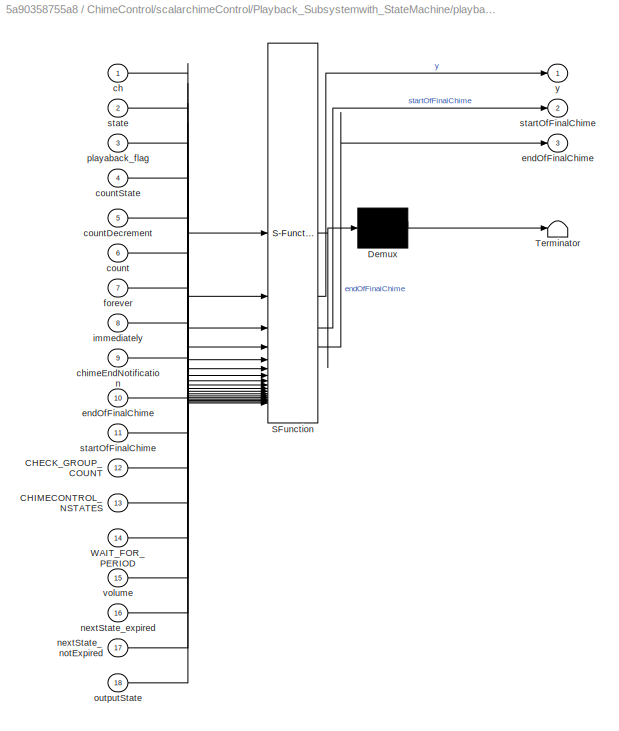
BLOCK [SubSystem] ChimeControl/scalarchimeControl/Playback_Subsystemwith_StateMachine/playback_statemachine_function_singlechannel
  ErrorFcn = Stateflow.Translate.translate
  PermitHierarchicalResolution = ExplicitOnly
  SFBlockType = MATLAB Function
  TreatAsAtomicUnit = on
BLOCK [Demux] ChimeControl/scalarchimeControl/Playback_Subsystemwith_StateMachine/playback_statemachine_function_singlechannel/ Demux 
  Outputs = 1
BLOCK [S-Function] ChimeControl/scalarchimeControl/Playback_Subsystemwith_StateMachine/playback_statemachine_function_singlechannel/ SFunction 
  EnableBusSupport = off
  FunctionName = sf_sfun
  PortCounts = [18 4]
  SFcnIsStateOwnerBlock = off
  SFunctionDeploymentMode = off
  Tag = Stateflow S-Function 3
BLOCK [Terminator] ChimeControl/scalarchimeControl/Playback_Subsystemwith_StateMachine/playback_statemachine_function_singlechannel/ Terminator 
BLOCK [Inport] ChimeControl/scalarchimeControl/Playback_Subsystemwith_StateMachine/playback_statemachine_function_singlechannel/CHECK_GROUP_COUNT
  Port = 12
BLOCK [Inport] ChimeControl/scalarchimeControl/Playback_Subsystemwith_StateMachine/playback_statemachine_function_singlechannel/CHIMECONTROL_NSTATES
  Port = 13
BLOCK [Inport] ChimeControl/scalarchimeControl/Playback_Subsystemwith_StateMachine/playback_statemachine_function_singlechannel/WAIT_FOR_PERIOD
  Port = 14
BLOCK [Inport] ChimeControl/scalarchimeControl/Playback_Subsystemwith_StateMachine/playback_statemachine_function_singlechannel/ch
BLOCK [Inport] ChimeControl/scalarchimeControl/Playback_Subsystemwith_StateMachine/playback_statemachine_function_singlechannel/chimeEndNotification
  Port = 9
BLOCK [Inport] ChimeControl/scalarchimeControl/Playback_Subsystemwith_StateMachine/playback_statemachine_function_singlechannel/count
  Port = 6
BLOCK [Inport] ChimeControl/scalarchimeControl/Playback_Subsystemwith_StateMachine/playback_statemachine_function_singlechannel/countDecrement
  Port = 5
BLOCK [Inport] ChimeControl/scalarchimeControl/Playback_Subsystemwith_StateMachine/playback_statemachine_function_singlechannel/countState
  Port = 4
BLOCK [Outport] ChimeControl/scalarchimeControl/Playback_Subsystemwith_StateMachine/playback_statemachine_function_singlechannel/endOfFinalChime
  Port = 3
  VectorParamsAs1DForOutWhenUnconnected = off
BLOCK [Inport] ChimeControl/scalarchimeControl/Playback_Subsystemwith_StateMachine/playback_statemachine_function_singlechannel/endOfFinalChime 
  Port = 10
BLOCK [Inport] ChimeControl/scalarchimeControl/Playback_Subsystemwith_StateMachine/playback_statemachine_function_singlechannel/forever
  Port = 7
BLOCK [Inport] ChimeControl/scalarchimeControl/Playback_Subsystemwith_StateMachine/playback_statemachine_function_singlechannel/immediately
  Port = 8
BLOCK [Inport] ChimeControl/scalarchimeControl/Playback_Subsystemwith_StateMachine/playback_statemachine_function_singlechannel/nextState_expired
  Port = 16
BLOCK [Inport] ChimeControl/scalarchimeControl/Playback_Subsystemwith_StateMachine/playback_statemachine_function_singlechannel/nextState_notExpired
  Port = 17
BLOCK [Inport] ChimeControl/scalarchimeControl/Playback_Subsystemwith_StateMachine/playback_statemachine_function_singlechannel/outputState
  Port = 18
BLOCK [Inport] ChimeControl/scalarchimeControl/Playback_Subsystemwith_StateMachine/playback_statemachine_function_singlechannel/playaback_flag
  Port = 3
BLOCK [Outport] ChimeControl/scalarchimeControl/Playback_Subsystemwith_StateMachine/playback_statemachine_function_singlechannel/startOfFinalChime
  Port = 2
  VectorParamsAs1DForOutWhenUnconnected = off
BLOCK [Inport] ChimeControl/scalarchimeControl/Playback_Subsystemwith_StateMachine/playback_statemachine_function_singlechannel/startOfFinalChime 
  Port = 11
BLOCK [Inport] ChimeControl/scalarchimeControl/Playback_Subsystemwith_StateMachine/playback_statemachine_function_singlechannel/state
  Port = 2
BLOCK [Inport] ChimeControl/scalarchimeControl/Playback_Subsystemwith_StateMachine/playback_statemachine_function_singlechannel/volume
  Port = 15
BLOCK [Outport] ChimeControl/scalarchimeControl/Playback_Subsystemwith_StateMachine/playback_statemachine_function_singlechannel/y
  VectorParamsAs1DForOutWhenUnconnected = off
BLOCK [Inport] ChimeControl/scalarchimeControl/Playback_Subsystemwith_StateMachine/startOfFinalChime_In1
  Port = 11
BLOCK [Outport] ChimeControl/scalarchimeControl/Playback_Subsystemwith_StateMachine/startOfFinalChime_Out2
  Port = 2
  VectorParamsAs1DForOutWhenUnconnected = off
BLOCK [Inport] ChimeControl/scalarchimeControl/Playback_Subsystemwith_StateMachine/state_In2
  Port = 2
BLOCK [Inport] ChimeControl/scalarchimeControl/Playback_Subsystemwith_StateMachine/volume_In12
  Port = 12
BLOCK [Outport] ChimeControl/scalarchimeControl/Playback_Subsystemwith_StateMachine/y_Out1
  VectorParamsAs1DForOutWhenUnconnected = off
BLOCK [Inport] ChimeControl/scalarchimeControl/REQ_chimeCancel
  Port = 12
BLOCK [Inport] ChimeControl/scalarchimeControl/REQ_include_internal_chime_flag
  Port = 11
BLOCK [Inport] ChimeControl/scalarchimeControl/REQ_num_chime_count
  Port = 8
BLOCK [Inport] ChimeControl/scalarchimeControl/REQ_speaker_routing
  Port = 10
BLOCK [RelationalOperator] ChimeControl/scalarchimeControl/Relational Operator
  InputSameDT = off
  Operator = ==
  OutDataTypeStr = boolean
  RndMeth = Simplest
BLOCK [Switch] ChimeControl/scalarchimeControl/Switch1
  Criteria = u2 > Threshold
  InputSameDT = off
  SaturateOnIntegerOverflow = off
BLOCK [Math] ChimeControl/scalarchimeControl/Transpose
  Operator = transpose
  SignedPower = on
BLOCK [Math] ChimeControl/scalarchimeControl/Transpose2
  Operator = transpose
  SignedPower = on
BLOCK [Math] ChimeControl/scalarchimeControl/Transpose3
  Operator = transpose
  SignedPower = on
BLOCK [Inport] ChimeControl/scalarchimeControl/channel_in
  Port = 2
BLOCK [Inport] ChimeControl/scalarchimeControl/chimeCount_In
  Port = 9
BLOCK [Inport] ChimeControl/scalarchimeControl/chimeEndNotification
  Port = 7
BLOCK [Outport] ChimeControl/scalarchimeControl/chimeEndNotification_Out1
  Port = 3
  VectorParamsAs1DForOutWhenUnconnected = off
BLOCK [Constant] ChimeControl/scalarchimeControl/countDecrement
  OutDataTypeStr = single
  Value = Config.CountDecrement
  VectorParams1D = off
BLOCK [Constant] ChimeControl/scalarchimeControl/countState
  OutDataTypeStr = single
  Value = Config.CountState
  VectorParams1D = off
BLOCK [Inport] ChimeControl/scalarchimeControl/count_In6
BLOCK [Inport] ChimeControl/scalarchimeControl/forever_In5
  Port = 5
BLOCK [Inport] ChimeControl/scalarchimeControl/immediately_in6
  Port = 6
BLOCK [Inport] ChimeControl/scalarchimeControl/playback_flag_in5
  Port = 4
BLOCK [Constant] ChimeControl/scalarchimeControl/state
  OutDataTypeStr = single
  Value = Config.State
  VectorParams1D = off
BLOCK [Inport] ChimeControl/scalarchimeControl/volume_In4
  Port = 3
BLOCK [Outport] ChimeControl/scalarchimeControl/y_Out1
  VectorParamsAs1DForOutWhenUnconnected = off
LINE ChimeControl/ChimeShapeConfiguration/Configurationfunction:1 -> ChimeControl/ChimeShapeConfiguration/Out1:1
LINE ChimeControl/ChimeShapeConfiguration/FrameSIZE:1 -> ChimeControl/ChimeShapeConfiguration/Configurationfunction:8
LINE ChimeControl/ChimeShapeConfiguration/Offtime:1 -> ChimeControl/ChimeShapeConfiguration/Configurationfunction:3
LINE ChimeControl/ChimeShapeConfiguration/Ontime:1 -> ChimeControl/ChimeShapeConfiguration/Configurationfunction:2
LINE ChimeControl/ChimeShapeConfiguration/SampleRate:1 -> ChimeControl/ChimeShapeConfiguration/Configurationfunction:7
LINE ChimeControl/ChimeShapeConfiguration/count:1 -> ChimeControl/ChimeShapeConfiguration/Configurationfunction:6
LINE ChimeControl/ChimeShapeConfiguration/numPulse_Threshold_system/If Action Subsystem/In1:1 -> ChimeControl/ChimeShapeConfiguration/numPulse_Threshold_system/If Action Subsystem/Out1:1
LINE ChimeControl/ChimeShapeConfiguration/numPulse_Threshold_system/If Action Subsystem1/In1:1 -> ChimeControl/ChimeShapeConfiguration/numPulse_Threshold_system/If Action Subsystem1/Out1:1
LINE ChimeControl/ChimeShapeConfiguration/numPulse_Threshold_system/If Action Subsystem1:1 -> ChimeControl/ChimeShapeConfiguration/numPulse_Threshold_system/Switch:3
LINE ChimeControl/ChimeShapeConfiguration/numPulse_Threshold_system/If Action Subsystem:1 -> ChimeControl/ChimeShapeConfiguration/numPulse_Threshold_system/Switch:1
LINE ChimeControl/ChimeShapeConfiguration/numPulse_Threshold_system/Relational Operator:1 -> ChimeControl/ChimeShapeConfiguration/numPulse_Threshold_system/Switch:2
LINE ChimeControl/ChimeShapeConfiguration/numPulse_Threshold_system/Switch:1 -> ChimeControl/ChimeShapeConfiguration/numPulse_Threshold_system/numPulse:1
NET ChimeControl/ChimeShapeConfiguration/numPulse_Threshold_system/numPulse_In:1 -> ChimeControl/ChimeShapeConfiguration/numPulse_Threshold_system/If Action Subsystem:1, ChimeControl/ChimeShapeConfiguration/numPulse_Threshold_system/Relational Operator:1
NET ChimeControl/ChimeShapeConfiguration/numPulse_Threshold_system/thresholdNumPulse:1 -> ChimeControl/ChimeShapeConfiguration/numPulse_Threshold_system/If Action Subsystem1:1, ChimeControl/ChimeShapeConfiguration/numPulse_Threshold_system/Relational Operator:2
LINE ChimeControl/ChimeShapeConfiguration/numPulse_Threshold_system:1 -> ChimeControl/ChimeShapeConfiguration/Configurationfunction:4
LINE ChimeControl/ChimeShapeConfiguration/numPulses:1 -> ChimeControl/ChimeShapeConfiguration/numPulse_Threshold_system:1
LINE ChimeControl/ChimeShapeConfiguration/period:1 -> ChimeControl/ChimeShapeConfiguration/Configurationfunction:5
LINE ChimeControl/ChimeShapeConfiguration/risetime:1 -> ChimeControl/ChimeShapeConfiguration/Configurationfunction:1
LINE ChimeControl/ChimeShapeConfiguration:1 -> ChimeControl/scalarchimeControl:1
LINE ChimeControl/DSR_chime_group_count:1 -> ChimeControl/scalarchimeControl:9
LINE ChimeControl/Data Type Conversion:1 -> ChimeControl/Scalar_Control_Output:1
LINE ChimeControl/From1:1 -> ChimeControl/Transpose1:1
LINE ChimeControl/From2:1 -> ChimeControl/Triggered Subsystem1:trigger
LINE ChimeControl/From3:1 -> ChimeControl/Triggered Subsystem:enable
LINE ChimeControl/From4:1 -> ChimeControl/RTC2:1
LINE ChimeControl/From5:1 -> ChimeControl/riseTime_Out:1
NET ChimeControl/From6:1 -> ChimeControl/ChimeShapeConfiguration:6, ChimeControl/DSW_chime_group_count:1
LINE ChimeControl/From7:1 -> ChimeControl/chimeType_Out:1
LINE ChimeControl/From:1 -> ChimeControl/fallTime_Out:1
LINE ChimeControl/MATLAB Function:1 -> ChimeControl/scalarchimeControl:2
LINE ChimeControl/RTC1:1 -> ChimeControl/Goto1:1
NET ChimeControl/RTC1:2 -> ChimeControl/ChimeShapeConfiguration:1, ChimeControl/Goto6:1
LINE ChimeControl/RTC1:3 -> ChimeControl/ChimeShapeConfiguration:2
LINE ChimeControl/RTC1:4 -> ChimeControl/Goto7:1
LINE ChimeControl/RTC1:5 -> ChimeControl/ChimeShapeConfiguration:3
LINE ChimeControl/RTC1:6 -> ChimeControl/ChimeShapeConfiguration:4
LINE ChimeControl/RTC1:7 -> ChimeControl/ChimeShapeConfiguration:5
LINE ChimeControl/RTC2:1 -> ChimeControl/scalarchimeControl:4
LINE ChimeControl/RTC2:2 -> ChimeControl/scalarchimeControl:5
LINE ChimeControl/RTC2:3 -> ChimeControl/scalarchimeControl:6
LINE ChimeControl/RTC2:4 -> ChimeControl/scalarchimeControl:7
LINE ChimeControl/RTC2:5 -> ChimeControl/Goto3:1
LINE ChimeControl/RTC3:1 -> ChimeControl/scalarchimeControl:8
LINE ChimeControl/RTC3:2 -> ChimeControl/Goto:1
LINE ChimeControl/RTC3:3 -> ChimeControl/scalarchimeControl:10
LINE ChimeControl/RTC3:4 -> ChimeControl/Transpose2:1
NET ChimeControl/RTC3:5 -> ChimeControl/RTC3:1, ChimeControl/scalarchimeControl:12
LINE ChimeControl/RTC3:6 -> ChimeControl/Transpose:1
LINE ChimeControl/Transpose1:1 -> ChimeControl/VolumeIndexToGainValue:1
LINE ChimeControl/Transpose2:1 -> ChimeControl/scalarchimeControl:11
LINE ChimeControl/Transpose:1 -> ChimeControl/Goto2:1
LINE ChimeControl/Triggered Subsystem/Data Type Conversion:1 -> ChimeControl/Triggered Subsystem/Out1:1
LINE ChimeControl/Triggered Subsystem/In1:1 -> ChimeControl/Triggered Subsystem/Data Type Conversion:1
LINE ChimeControl/Triggered Subsystem1/Constant:1 -> ChimeControl/Triggered Subsystem1/Equal:2
LINE ChimeControl/Triggered Subsystem1/Equal:1 -> ChimeControl/Triggered Subsystem1/Variable Selector:1
LINE ChimeControl/Triggered Subsystem1/In1:1 -> ChimeControl/Triggered Subsystem1/Equal:1
LINE ChimeControl/Triggered Subsystem1/Variable Selector:1 -> ChimeControl/Triggered Subsystem1/Out1:1
LINE ChimeControl/Triggered Subsystem1:1 -> ChimeControl/Goto5:1
LINE ChimeControl/Triggered Subsystem:1 -> ChimeControl/RTC2:2
LINE ChimeControl/VolumeIndexToGainValue/TOP_GainDB:1 -> ChimeControl/VolumeIndexToGainValue/calculate_vol_gain:3
LINE ChimeControl/VolumeIndexToGainValue/TOP_Index:1 -> ChimeControl/VolumeIndexToGainValue/calculate_vol_gain:2
LINE ChimeControl/VolumeIndexToGainValue/TranslateTrigger1:1 -> ChimeControl/VolumeIndexToGainValue/Volume_Table_Translation:trigger
LINE ChimeControl/VolumeIndexToGainValue/TuneVarChimeVolumeTable:1 -> ChimeControl/VolumeIndexToGainValue/Volume_Table_Translation:1
LINE ChimeControl/VolumeIndexToGainValue/VolumeIndex:1 -> ChimeControl/VolumeIndexToGainValue/calculate_vol_gain:1
LINE ChimeControl/VolumeIndexToGainValue/Volume_Table_Translation:1 -> ChimeControl/VolumeIndexToGainValue/TOP_Index:1
LINE ChimeControl/VolumeIndexToGainValue/Volume_Table_Translation:2 -> ChimeControl/VolumeIndexToGainValue/TOP_GainDB:1
NET ChimeControl/VolumeIndexToGainValue/calculate_vol_gain:1 -> ChimeControl/VolumeIndexToGainValue/Data Store Write:1, ChimeControl/VolumeIndexToGainValue/Gainvalue:1
LINE ChimeControl/VolumeIndexToGainValue:1 -> ChimeControl/scalarchimeControl:3
LINE ChimeControl/scalarchimeControl/ChimeCancelSubsystem/If Action Subsystem/Assignment:1 -> ChimeControl/scalarchimeControl/ChimeCancelSubsystem/If Action Subsystem/DSW_volume:1
LINE ChimeControl/scalarchimeControl/ChimeCancelSubsystem/If Action Subsystem/DSR_volume:1 -> ChimeControl/scalarchimeControl/ChimeCancelSubsystem/If Action Subsystem/Assignment:1
LINE ChimeControl/scalarchimeControl/ChimeCancelSubsystem/If Action Subsystem/MATLAB Function:1 -> ChimeControl/scalarchimeControl/ChimeCancelSubsystem/If Action Subsystem/Assignment:2
LINE ChimeControl/scalarchimeControl/ChimeCancelSubsystem/If Action Subsystem1/DSR_volume:1 -> ChimeControl/scalarchimeControl/ChimeCancelSubsystem/If Action Subsystem1/DSW_volume:1
LINE ChimeControl/scalarchimeControl/ChimeCancelSubsystem/If:1 -> ChimeControl/scalarchimeControl/ChimeCancelSubsystem/If Action Subsystem:ifaction
LINE ChimeControl/scalarchimeControl/ChimeCancelSubsystem/If:2 -> ChimeControl/scalarchimeControl/ChimeCancelSubsystem/If Action Subsystem1:ifaction
LINE ChimeControl/scalarchimeControl/ChimeCancelSubsystem/chimeCancel_In1:1 -> ChimeControl/scalarchimeControl/ChimeCancelSubsystem/If:1
LINE ChimeControl/scalarchimeControl/Constant1:1 -> ChimeControl/scalarchimeControl/Relational Operator:2
LINE ChimeControl/scalarchimeControl/DSR_volume:1 -> ChimeControl/scalarchimeControl/Transpose:1
LINE ChimeControl/scalarchimeControl/Data Store Read2:1 -> ChimeControl/scalarchimeControl/Playback_Subsystemwith_StateMachine:11
LINE ChimeControl/scalarchimeControl/Data Store Read:1 -> ChimeControl/scalarchimeControl/Playback_Subsystemwith_StateMachine:10
LINE ChimeControl/scalarchimeControl/Data Type Conversion:1 -> ChimeControl/scalarchimeControl/Delay:1
LINE ChimeControl/scalarchimeControl/Delay:1 -> ChimeControl/scalarchimeControl/FW_AppendHostNotification_Out1:1
LINE ChimeControl/scalarchimeControl/FWNotify_DSP_END_OF_FINAL_CHIME_system/Assignment1:1 -> ChimeControl/scalarchimeControl/FWNotify_DSP_END_OF_FINAL_CHIME_system/DSW_endOfFinalChime:1
LINE ChimeControl/scalarchimeControl/FWNotify_DSP_END_OF_FINAL_CHIME_system/Assignment:1 -> ChimeControl/scalarchimeControl/FWNotify_DSP_END_OF_FINAL_CHIME_system/Out1:1
NET ChimeControl/scalarchimeControl/FWNotify_DSP_END_OF_FINAL_CHIME_system/Constant:1 -> ChimeControl/scalarchimeControl/FWNotify_DSP_END_OF_FINAL_CHIME_system/Assignment:2, ChimeControl/scalarchimeControl/FWNotify_DSP_END_OF_FINAL_CHIME_system/Data Type Conversion:1
LINE ChimeControl/scalarchimeControl/FWNotify_DSP_END_OF_FINAL_CHIME_system/DSR_FW_AppendHostNotification:1 -> ChimeControl/scalarchimeControl/FWNotify_DSP_END_OF_FINAL_CHIME_system/Assignment:1
LINE ChimeControl/scalarchimeControl/FWNotify_DSP_END_OF_FINAL_CHIME_system/Data Type Conversion:1 -> ChimeControl/scalarchimeControl/FWNotify_DSP_END_OF_FINAL_CHIME_system/Assignment1:2
NET ChimeControl/scalarchimeControl/FWNotify_DSP_END_OF_FINAL_CHIME_system/channel_In1:1 -> ChimeControl/scalarchimeControl/FWNotify_DSP_END_OF_FINAL_CHIME_system/Assignment1:3, ChimeControl/scalarchimeControl/FWNotify_DSP_END_OF_FINAL_CHIME_system/Assignment:3
LINE ChimeControl/scalarchimeControl/FWNotify_DSP_END_OF_FINAL_CHIME_system/endOfFinalChime_Out3:1 -> ChimeControl/scalarchimeControl/FWNotify_DSP_END_OF_FINAL_CHIME_system/Assignment1:1
LINE ChimeControl/scalarchimeControl/FWNotify_DSP_END_OF_FINAL_CHIME_system:1 -> ChimeControl/scalarchimeControl/Transpose2:1
LINE ChimeControl/scalarchimeControl/FWNotify_DSP_START_OF_FINAL_CHIME_system/Assignment1:1 -> ChimeControl/scalarchimeControl/FWNotify_DSP_START_OF_FINAL_CHIME_system/Data Store Write:1
LINE ChimeControl/scalarchimeControl/FWNotify_DSP_START_OF_FINAL_CHIME_system/Assignment:1 -> ChimeControl/scalarchimeControl/FWNotify_DSP_START_OF_FINAL_CHIME_system/Out1:1
NET ChimeControl/scalarchimeControl/FWNotify_DSP_START_OF_FINAL_CHIME_system/Constant:1 -> ChimeControl/scalarchimeControl/FWNotify_DSP_START_OF_FINAL_CHIME_system/Assignment:2, ChimeControl/scalarchimeControl/FWNotify_DSP_START_OF_FINAL_CHIME_system/Data Type Conversion:1
LINE ChimeControl/scalarchimeControl/FWNotify_DSP_START_OF_FINAL_CHIME_system/DSR_FW_AppendHostNotification:1 -> ChimeControl/scalarchimeControl/FWNotify_DSP_START_OF_FINAL_CHIME_system/Assignment:1
LINE ChimeControl/scalarchimeControl/FWNotify_DSP_START_OF_FINAL_CHIME_system/Data Type Conversion:1 -> ChimeControl/scalarchimeControl/FWNotify_DSP_START_OF_FINAL_CHIME_system/Assignment1:2
NET ChimeControl/scalarchimeControl/FWNotify_DSP_START_OF_FINAL_CHIME_system/channel_In1:1 -> ChimeControl/scalarchimeControl/FWNotify_DSP_START_OF_FINAL_CHIME_system/Assignment1:3, ChimeControl/scalarchimeControl/FWNotify_DSP_START_OF_FINAL_CHIME_system/Assignment:3
LINE ChimeControl/scalarchimeControl/FWNotify_DSP_START_OF_FINAL_CHIME_system/startOfFinalChime_Out2:1 -> ChimeControl/scalarchimeControl/FWNotify_DSP_START_OF_FINAL_CHIME_system/Assignment1:1
LINE ChimeControl/scalarchimeControl/FWNotify_DSP_START_OF_FINAL_CHIME_system:1 -> ChimeControl/scalarchimeControl/Transpose3:1
LINE ChimeControl/scalarchimeControl/InternalChime_signal_Subsystem/Assignment1:1 -> ChimeControl/scalarchimeControl/InternalChime_signal_Subsystem/DSW_endOfFinalChime:1
LINE ChimeControl/scalarchimeControl/InternalChime_signal_Subsystem/Assignment:1 -> ChimeControl/scalarchimeControl/InternalChime_signal_Subsystem/DSW_chimePlayPending:1
NET ChimeControl/scalarchimeControl/InternalChime_signal_Subsystem/Constant:1 -> ChimeControl/scalarchimeControl/InternalChime_signal_Subsystem/Assignment1:3, ChimeControl/scalarchimeControl/InternalChime_signal_Subsystem/Assignment:3
LINE ChimeControl/scalarchimeControl/InternalChime_signal_Subsystem/DSR_chimePlayPending:1 -> ChimeControl/scalarchimeControl/InternalChime_signal_Subsystem/Assignment:1
LINE ChimeControl/scalarchimeControl/InternalChime_signal_Subsystem/DSR_endOfFinalChime:1 -> ChimeControl/scalarchimeControl/InternalChime_signal_Subsystem/Assignment1:1
LINE ChimeControl/scalarchimeControl/InternalChime_signal_Subsystem/If3:1 -> ChimeControl/scalarchimeControl/InternalChime_signal_Subsystem/chime_playing_(internalChime)_subsystem:ifaction
LINE ChimeControl/scalarchimeControl/InternalChime_signal_Subsystem/Variable Selector1:1 -> ChimeControl/scalarchimeControl/InternalChime_signal_Subsystem/Assignment:2
LINE ChimeControl/scalarchimeControl/InternalChime_signal_Subsystem/Variable Selector:1 -> ChimeControl/scalarchimeControl/InternalChime_signal_Subsystem/Assignment1:2
LINE ChimeControl/scalarchimeControl/InternalChime_signal_Subsystem/chimeCount_In4:1 -> ChimeControl/scalarchimeControl/InternalChime_signal_Subsystem/chime_playing_(internalChime)_subsystem:2
NET ChimeControl/scalarchimeControl/InternalChime_signal_Subsystem/chimeNum:1 -> ChimeControl/scalarchimeControl/InternalChime_signal_Subsystem/If3:1, ChimeControl/scalarchimeControl/InternalChime_signal_Subsystem/chime_playing_(internalChime)_subsystem:1
LINE ChimeControl/scalarchimeControl/InternalChime_signal_Subsystem/chime_playing_(internalChime)_subsystem/If1:1 -> ChimeControl/scalarchimeControl/InternalChime_signal_Subsystem/chime_playing_(internalChime)_subsystem/count_zero_subsytem:ifaction
LINE ChimeControl/scalarchimeControl/InternalChime_signal_Subsystem/chime_playing_(internalChime)_subsystem/If1:2 -> ChimeControl/scalarchimeControl/InternalChime_signal_Subsystem/chime_playing_(internalChime)_subsystem/count_nonzero_subsytem:ifaction
NET ChimeControl/scalarchimeControl/InternalChime_signal_Subsystem/chime_playing_(internalChime)_subsystem/Variable Selector:1 -> ChimeControl/scalarchimeControl/InternalChime_signal_Subsystem/chime_playing_(internalChime)_subsystem/If1:1, ChimeControl/scalarchimeControl/InternalChime_signal_Subsystem/chime_playing_(internalChime)_subsystem/count_nonzero_subsytem:3
NET ChimeControl/scalarchimeControl/InternalChime_signal_Subsystem/chime_playing_(internalChime)_subsystem/chimeNum:1 -> ChimeControl/scalarchimeControl/InternalChime_signal_Subsystem/chime_playing_(internalChime)_subsystem/Variable Selector:2, ChimeControl/scalarchimeControl/InternalChime_signal_Subsystem/chime_playing_(internalChime)_subsystem/count_nonzero_subsytem:2
LINE ChimeControl/scalarchimeControl/InternalChime_signal_Subsystem/chime_playing_(internalChime)_subsystem/chime_group_count:1 -> ChimeControl/scalarchimeControl/InternalChime_signal_Subsystem/chime_playing_(internalChime)_subsystem/Variable Selector:1
LINE ChimeControl/scalarchimeControl/InternalChime_signal_Subsystem/chime_playing_(internalChime)_subsystem/count_nonzero_subsytem/Assignment:1 -> ChimeControl/scalarchimeControl/InternalChime_signal_Subsystem/chime_playing_(internalChime)_subsystem/count_nonzero_subsytem/chime_playpending_Out2:1
LINE ChimeControl/scalarchimeControl/InternalChime_signal_Subsystem/chime_playing_(internalChime)_subsystem/count_nonzero_subsytem/DSR_chimePlayPending:1 -> ChimeControl/scalarchimeControl/InternalChime_signal_Subsystem/chime_playing_(internalChime)_subsystem/count_nonzero_subsytem/Assignment:1
NET ChimeControl/scalarchimeControl/InternalChime_signal_Subsystem/chime_playing_(internalChime)_subsystem/count_nonzero_subsytem/IDLE_state_with_count_nonzero_subystem/Assignment1:1 -> ChimeControl/scalarchimeControl/InternalChime_signal_Subsystem/chime_playing_(internalChime)_subsystem/count_nonzero_subsytem/IDLE_state_with_count_nonzero_subystem/DSW_chime_group_count:1, ChimeControl/scalarchimeControl/InternalChime_signal_Subsystem/chime_playing_(internalChime)_subsystem/count_nonzero_subsytem/IDLE_state_with_count_nonzero_subystem/Out1:1
LINE ChimeControl/scalarchimeControl/InternalChime_signal_Subsystem/chime_playing_(internalChime)_subsystem/count_nonzero_subsytem/IDLE_state_with_count_nonzero_subystem/Assignment:1 -> ChimeControl/scalarchimeControl/InternalChime_signal_Subsystem/chime_playing_(internalChime)_subsystem/count_nonzero_subsytem/IDLE_state_with_count_nonzero_subystem/DSW_chimeRouting :1
LINE ChimeControl/scalarchimeControl/InternalChime_signal_Subsystem/chime_playing_(internalChime)_subsystem/count_nonzero_subsytem/IDLE_state_with_count_nonzero_subystem/DSR_chimeRouting:1 -> ChimeControl/scalarchimeControl/InternalChime_signal_Subsystem/chime_playing_(internalChime)_subsystem/count_nonzero_subsytem/IDLE_state_with_count_nonzero_subystem/Assignment:1
LINE ChimeControl/scalarchimeControl/InternalChime_signal_Subsystem/chime_playing_(internalChime)_subsystem/count_nonzero_subsytem/IDLE_state_with_count_nonzero_subystem/DSR_chime_group_count:1 -> ChimeControl/scalarchimeControl/InternalChime_signal_Subsystem/chime_playing_(internalChime)_subsystem/count_nonzero_subsytem/IDLE_state_with_count_nonzero_subystem/Assignment1:1
LINE ChimeControl/scalarchimeControl/InternalChime_signal_Subsystem/chime_playing_(internalChime)_subsystem/count_nonzero_subsytem/IDLE_state_with_count_nonzero_subystem/chimeCount:1 -> ChimeControl/scalarchimeControl/InternalChime_signal_Subsystem/chime_playing_(internalChime)_subsystem/count_nonzero_subsytem/IDLE_state_with_count_nonzero_subystem/Assignment1:2
LINE ChimeControl/scalarchimeControl/InternalChime_signal_Subsystem/chime_playing_(internalChime)_subsystem/count_nonzero_subsytem/IDLE_state_with_count_nonzero_subystem/chimeNum:1 -> ChimeControl/scalarchimeControl/InternalChime_signal_Subsystem/chime_playing_(internalChime)_subsystem/count_nonzero_subsytem/IDLE_state_with_count_nonzero_subystem/Terminator:1
LINE ChimeControl/scalarchimeControl/InternalChime_signal_Subsystem/chime_playing_(internalChime)_subsystem/count_nonzero_subsytem/IDLE_state_with_count_nonzero_subystem/speakerRouting:1 -> ChimeControl/scalarchimeControl/InternalChime_signal_Subsystem/chime_playing_(internalChime)_subsystem/count_nonzero_subsytem/IDLE_state_with_count_nonzero_subystem/Assignment:2
LINE ChimeControl/scalarchimeControl/InternalChime_signal_Subsystem/chime_playing_(internalChime)_subsystem/count_nonzero_subsytem/IDLE_state_with_count_nonzero_subystem:1 -> ChimeControl/scalarchimeControl/InternalChime_signal_Subsystem/chime_playing_(internalChime)_subsystem/count_nonzero_subsytem/Multiport Switch:2
LINE ChimeControl/scalarchimeControl/InternalChime_signal_Subsystem/chime_playing_(internalChime)_subsystem/count_nonzero_subsytem/Multiport Switch:1 -> ChimeControl/scalarchimeControl/InternalChime_signal_Subsystem/chime_playing_(internalChime)_subsystem/count_nonzero_subsytem/DSW_chime_group_count:1
LINE ChimeControl/scalarchimeControl/InternalChime_signal_Subsystem/chime_playing_(internalChime)_subsystem/count_nonzero_subsytem/Variable Selector:1 -> ChimeControl/scalarchimeControl/InternalChime_signal_Subsystem/chime_playing_(internalChime)_subsystem/count_nonzero_subsytem/Multiport Switch:1
NET ChimeControl/scalarchimeControl/InternalChime_signal_Subsystem/chime_playing_(internalChime)_subsystem/count_nonzero_subsytem/chimeNum:1 -> ChimeControl/scalarchimeControl/InternalChime_signal_Subsystem/chime_playing_(internalChime)_subsystem/count_nonzero_subsytem/IDLE_state_with_count_nonzero_subystem:1, ChimeControl/scalarchimeControl/InternalChime_signal_Subsystem/chime_playing_(internalChime)_subsystem/count_nonzero_subsytem/Variable Selector:2, ChimeControl/scalarchimeControl/InternalChime_signal_Subsystem/chime_playing_(internalChime)_subsystem/count_nonzero_subsytem/previousChimePlaying_subystem:1
NET ChimeControl/scalarchimeControl/InternalChime_signal_Subsystem/chime_playing_(internalChime)_subsystem/count_nonzero_subsytem/chime_group_count:1 -> ChimeControl/scalarchimeControl/InternalChime_signal_Subsystem/chime_playing_(internalChime)_subsystem/count_nonzero_subsytem/IDLE_state_with_count_nonzero_subystem:2, ChimeControl/scalarchimeControl/InternalChime_signal_Subsystem/chime_playing_(internalChime)_subsystem/count_nonzero_subsytem/previousChimePlaying_subystem:2
NET ChimeControl/scalarchimeControl/InternalChime_signal_Subsystem/chime_playing_(internalChime)_subsystem/count_nonzero_subsytem/previousChimePlaying_subystem/Data Store Read:1 -> ChimeControl/scalarchimeControl/InternalChime_signal_Subsystem/chime_playing_(internalChime)_subsystem/count_nonzero_subsytem/previousChimePlaying_subystem/Variable Selector:1, ChimeControl/scalarchimeControl/InternalChime_signal_Subsystem/chime_playing_(internalChime)_subsystem/count_nonzero_subsytem/previousChimePlaying_subystem/supression_subsystem:4
LINE ChimeControl/scalarchimeControl/InternalChime_signal_Subsystem/chime_playing_(internalChime)_subsystem/count_nonzero_subsytem/previousChimePlaying_subystem/If:1 -> ChimeControl/scalarchimeControl/InternalChime_signal_Subsystem/chime_playing_(internalChime)_subsystem/count_nonzero_subsytem/previousChimePlaying_subystem/supression_subsystem:ifaction
LINE ChimeControl/scalarchimeControl/InternalChime_signal_Subsystem/chime_playing_(internalChime)_subsystem/count_nonzero_subsytem/previousChimePlaying_subystem/If:2 -> ChimeControl/scalarchimeControl/InternalChime_signal_Subsystem/chime_playing_(internalChime)_subsystem/count_nonzero_subsytem/previousChimePlaying_subystem/continuousPreviousChime_subsystem:ifaction
LINE ChimeControl/scalarchimeControl/InternalChime_signal_Subsystem/chime_playing_(internalChime)_subsystem/count_nonzero_subsytem/previousChimePlaying_subystem/Merge:1 -> ChimeControl/scalarchimeControl/InternalChime_signal_Subsystem/chime_playing_(internalChime)_subsystem/count_nonzero_subsytem/previousChimePlaying_subystem/Out1:1
LINE ChimeControl/scalarchimeControl/InternalChime_signal_Subsystem/chime_playing_(internalChime)_subsystem/count_nonzero_subsytem/previousChimePlaying_subystem/Variable Selector:1 -> ChimeControl/scalarchimeControl/InternalChime_signal_Subsystem/chime_playing_(internalChime)_subsystem/count_nonzero_subsytem/previousChimePlaying_subystem/If:1
NET ChimeControl/scalarchimeControl/InternalChime_signal_Subsystem/chime_playing_(internalChime)_subsystem/count_nonzero_subsytem/previousChimePlaying_subystem/chimeNum:1 -> ChimeControl/scalarchimeControl/InternalChime_signal_Subsystem/chime_playing_(internalChime)_subsystem/count_nonzero_subsytem/previousChimePlaying_subystem/Variable Selector:2, ChimeControl/scalarchimeControl/InternalChime_signal_Subsystem/chime_playing_(internalChime)_subsystem/count_nonzero_subsytem/previousChimePlaying_subystem/continuousPreviousChime_subsystem:1, ChimeControl/scalarchimeControl/InternalChime_signal_Subsystem/chime_playing_(internalChime)_subsystem/count_nonzero_subsytem/previousChimePlaying_subystem/supression_subsystem:1
NET ChimeControl/scalarchimeControl/InternalChime_signal_Subsystem/chime_playing_(internalChime)_subsystem/count_nonzero_subsytem/previousChimePlaying_subystem/chime_group_count:1 -> ChimeControl/scalarchimeControl/InternalChime_signal_Subsystem/chime_playing_(internalChime)_subsystem/count_nonzero_subsytem/previousChimePlaying_subystem/continuousPreviousChime_subsystem:2, ChimeControl/scalarchimeControl/InternalChime_signal_Subsystem/chime_playing_(internalChime)_subsystem/count_nonzero_subsytem/previousChimePlaying_subystem/supression_subsystem:2
LINE ChimeControl/scalarchimeControl/InternalChime_signal_Subsystem/chime_playing_(internalChime)_subsystem/count_nonzero_subsytem/previousChimePlaying_subystem/continuousPreviousChime_subsystem/DSR_chimePlayPending:1 -> ChimeControl/scalarchimeControl/InternalChime_signal_Subsystem/chime_playing_(internalChime)_subsystem/count_nonzero_subsytem/previousChimePlaying_subystem/continuousPreviousChime_subsystem/Variable Selector:1
NET ChimeControl/scalarchimeControl/InternalChime_signal_Subsystem/chime_playing_(internalChime)_subsystem/count_nonzero_subsytem/previousChimePlaying_subystem/continuousPreviousChime_subsystem/DSR_remainingCount:1 -> ChimeControl/scalarchimeControl/InternalChime_signal_Subsystem/chime_playing_(internalChime)_subsystem/count_nonzero_subsytem/previousChimePlaying_subystem/continuousPreviousChime_subsystem/If1:2, ChimeControl/scalarchimeControl/InternalChime_signal_Subsystem/chime_playing_(internalChime)_subsystem/count_nonzero_subsytem/previousChimePlaying_subystem/continuousPreviousChime_subsystem/If:2
LINE ChimeControl/scalarchimeControl/InternalChime_signal_Subsystem/chime_playing_(internalChime)_subsystem/count_nonzero_subsytem/previousChimePlaying_subystem/continuousPreviousChime_subsystem/If Action Subsystem1/Variable Selector:1 -> ChimeControl/scalarchimeControl/InternalChime_signal_Subsystem/chime_playing_(internalChime)_subsystem/count_nonzero_subsytem/previousChimePlaying_subystem/continuousPreviousChime_subsystem/If Action Subsystem1/DSW_remainingCount:1
LINE ChimeControl/scalarchimeControl/InternalChime_signal_Subsystem/chime_playing_(internalChime)_subsystem/count_nonzero_subsytem/previousChimePlaying_subystem/continuousPreviousChime_subsystem/If Action Subsystem1/chimeNum:1 -> ChimeControl/scalarchimeControl/InternalChime_signal_Subsystem/chime_playing_(internalChime)_subsystem/count_nonzero_subsytem/previousChimePlaying_subystem/continuousPreviousChime_subsystem/If Action Subsystem1/Variable Selector:2
LINE ChimeControl/scalarchimeControl/InternalChime_signal_Subsystem/chime_playing_(internalChime)_subsystem/count_nonzero_subsytem/previousChimePlaying_subystem/continuousPreviousChime_subsystem/If Action Subsystem1/chime_group_count:1 -> ChimeControl/scalarchimeControl/InternalChime_signal_Subsystem/chime_playing_(internalChime)_subsystem/count_nonzero_subsytem/previousChimePlaying_subystem/continuousPreviousChime_subsystem/If Action Subsystem1/Variable Selector:1
LINE ChimeControl/scalarchimeControl/InternalChime_signal_Subsystem/chime_playing_(internalChime)_subsystem/count_nonzero_subsytem/previousChimePlaying_subystem/continuousPreviousChime_subsystem/If Action Subsystem2/Add:1 -> ChimeControl/scalarchimeControl/InternalChime_signal_Subsystem/chime_playing_(internalChime)_subsystem/count_nonzero_subsytem/previousChimePlaying_subystem/continuousPreviousChime_subsystem/If Action Subsystem2/Data Type Conversion:1
LINE ChimeControl/scalarchimeControl/InternalChime_signal_Subsystem/chime_playing_(internalChime)_subsystem/count_nonzero_subsytem/previousChimePlaying_subystem/continuousPreviousChime_subsystem/If Action Subsystem2/CHECK_GROUP_COUNT:1 -> ChimeControl/scalarchimeControl/InternalChime_signal_Subsystem/chime_playing_(internalChime)_subsystem/count_nonzero_subsytem/previousChimePlaying_subystem/continuousPreviousChime_subsystem/If Action Subsystem2/Add:2
LINE ChimeControl/scalarchimeControl/InternalChime_signal_Subsystem/chime_playing_(internalChime)_subsystem/count_nonzero_subsytem/previousChimePlaying_subystem/continuousPreviousChime_subsystem/If Action Subsystem2/CHIMECONTROL_NSTATES:1 -> ChimeControl/scalarchimeControl/InternalChime_signal_Subsystem/chime_playing_(internalChime)_subsystem/count_nonzero_subsytem/previousChimePlaying_subystem/continuousPreviousChime_subsystem/If Action Subsystem2/Multiply:2
LINE ChimeControl/scalarchimeControl/InternalChime_signal_Subsystem/chime_playing_(internalChime)_subsystem/count_nonzero_subsytem/previousChimePlaying_subystem/continuousPreviousChime_subsystem/If Action Subsystem2/Data Type Conversion:1 -> ChimeControl/scalarchimeControl/InternalChime_signal_Subsystem/chime_playing_(internalChime)_subsystem/count_nonzero_subsytem/previousChimePlaying_subystem/continuousPreviousChime_subsystem/If Action Subsystem2/DSW_remainingCount:1
LINE ChimeControl/scalarchimeControl/InternalChime_signal_Subsystem/chime_playing_(internalChime)_subsystem/count_nonzero_subsytem/previousChimePlaying_subystem/continuousPreviousChime_subsystem/If Action Subsystem2/Multiply:1 -> ChimeControl/scalarchimeControl/InternalChime_signal_Subsystem/chime_playing_(internalChime)_subsystem/count_nonzero_subsytem/previousChimePlaying_subystem/continuousPreviousChime_subsystem/If Action Subsystem2/Add:1
LINE ChimeControl/scalarchimeControl/InternalChime_signal_Subsystem/chime_playing_(internalChime)_subsystem/count_nonzero_subsytem/previousChimePlaying_subystem/continuousPreviousChime_subsystem/If Action Subsystem2/chimeNum:1 -> ChimeControl/scalarchimeControl/InternalChime_signal_Subsystem/chime_playing_(internalChime)_subsystem/count_nonzero_subsytem/previousChimePlaying_subystem/continuousPreviousChime_subsystem/If Action Subsystem2/Multiply:1
LINE ChimeControl/scalarchimeControl/InternalChime_signal_Subsystem/chime_playing_(internalChime)_subsystem/count_nonzero_subsytem/previousChimePlaying_subystem/continuousPreviousChime_subsystem/If Action Subsystem3/Assignment:1 -> ChimeControl/scalarchimeControl/InternalChime_signal_Subsystem/chime_playing_(internalChime)_subsystem/count_nonzero_subsytem/previousChimePlaying_subystem/continuousPreviousChime_subsystem/If Action Subsystem3/DSW_chimeRouting:1
LINE ChimeControl/scalarchimeControl/InternalChime_signal_Subsystem/chime_playing_(internalChime)_subsystem/count_nonzero_subsytem/previousChimePlaying_subystem/continuousPreviousChime_subsystem/If Action Subsystem3/DSR_chimeRouting:1 -> ChimeControl/scalarchimeControl/InternalChime_signal_Subsystem/chime_playing_(internalChime)_subsystem/count_nonzero_subsytem/previousChimePlaying_subystem/continuousPreviousChime_subsystem/If Action Subsystem3/Assignment:1
LINE ChimeControl/scalarchimeControl/InternalChime_signal_Subsystem/chime_playing_(internalChime)_subsystem/count_nonzero_subsytem/previousChimePlaying_subystem/continuousPreviousChime_subsystem/If Action Subsystem3/Variable Selector:1 -> ChimeControl/scalarchimeControl/InternalChime_signal_Subsystem/chime_playing_(internalChime)_subsystem/count_nonzero_subsytem/previousChimePlaying_subystem/continuousPreviousChime_subsystem/If Action Subsystem3/Assignment:2
NET ChimeControl/scalarchimeControl/InternalChime_signal_Subsystem/chime_playing_(internalChime)_subsystem/count_nonzero_subsytem/previousChimePlaying_subystem/continuousPreviousChime_subsystem/If Action Subsystem3/chimeNum:1 -> ChimeControl/scalarchimeControl/InternalChime_signal_Subsystem/chime_playing_(internalChime)_subsystem/count_nonzero_subsytem/previousChimePlaying_subystem/continuousPreviousChime_subsystem/If Action Subsystem3/Assignment:3, ChimeControl/scalarchimeControl/InternalChime_signal_Subsystem/chime_playing_(internalChime)_subsystem/count_nonzero_subsytem/previousChimePlaying_subystem/continuousPreviousChime_subsystem/If Action Subsystem3/Variable Selector:2
LINE ChimeControl/scalarchimeControl/InternalChime_signal_Subsystem/chime_playing_(internalChime)_subsystem/count_nonzero_subsytem/previousChimePlaying_subystem/continuousPreviousChime_subsystem/If Action Subsystem3/speakerRouting:1 -> ChimeControl/scalarchimeControl/InternalChime_signal_Subsystem/chime_playing_(internalChime)_subsystem/count_nonzero_subsytem/previousChimePlaying_subystem/continuousPreviousChime_subsystem/If Action Subsystem3/Variable Selector:1
NET ChimeControl/scalarchimeControl/InternalChime_signal_Subsystem/chime_playing_(internalChime)_subsystem/count_nonzero_subsytem/previousChimePlaying_subystem/continuousPreviousChime_subsystem/If Action Subsystem4/Assignment:1 -> ChimeControl/scalarchimeControl/InternalChime_signal_Subsystem/chime_playing_(internalChime)_subsystem/count_nonzero_subsytem/previousChimePlaying_subystem/continuousPreviousChime_subsystem/If Action Subsystem4/DSW_chime_group_count:1, ChimeControl/scalarchimeControl/InternalChime_signal_Subsystem/chime_playing_(internalChime)_subsystem/count_nonzero_subsytem/previousChimePlaying_subystem/continuousPreviousChime_subsystem/If Action Subsystem4/Out1:1
LINE ChimeControl/scalarchimeControl/InternalChime_signal_Subsystem/chime_playing_(internalChime)_subsystem/count_nonzero_subsytem/previousChimePlaying_subystem/continuousPreviousChime_subsystem/If Action Subsystem4/DSR_chime_group_count:1 -> ChimeControl/scalarchimeControl/InternalChime_signal_Subsystem/chime_playing_(internalChime)_subsystem/count_nonzero_subsytem/previousChimePlaying_subystem/continuousPreviousChime_subsystem/If Action Subsystem4/Assignment:1
LINE ChimeControl/scalarchimeControl/InternalChime_signal_Subsystem/chime_playing_(internalChime)_subsystem/count_nonzero_subsytem/previousChimePlaying_subystem/continuousPreviousChime_subsystem/If Action Subsystem4/DSR_remainingCount:1 -> ChimeControl/scalarchimeControl/InternalChime_signal_Subsystem/chime_playing_(internalChime)_subsystem/count_nonzero_subsytem/previousChimePlaying_subystem/continuousPreviousChime_subsystem/If Action Subsystem4/Assignment:2
LINE ChimeControl/scalarchimeControl/InternalChime_signal_Subsystem/chime_playing_(internalChime)_subsystem/count_nonzero_subsytem/previousChimePlaying_subystem/continuousPreviousChime_subsystem/If Action Subsystem4/chimeNum:1 -> ChimeControl/scalarchimeControl/InternalChime_signal_Subsystem/chime_playing_(internalChime)_subsystem/count_nonzero_subsytem/previousChimePlaying_subystem/continuousPreviousChime_subsystem/If Action Subsystem4/Terminator:1
LINE ChimeControl/scalarchimeControl/InternalChime_signal_Subsystem/chime_playing_(internalChime)_subsystem/count_nonzero_subsytem/previousChimePlaying_subystem/continuousPreviousChime_subsystem/If Action Subsystem4:1 -> ChimeControl/scalarchimeControl/InternalChime_signal_Subsystem/chime_playing_(internalChime)_subsystem/count_nonzero_subsytem/previousChimePlaying_subystem/continuousPreviousChime_subsystem/chimegroupCountOut1:1
LINE ChimeControl/scalarchimeControl/InternalChime_signal_Subsystem/chime_playing_(internalChime)_subsystem/count_nonzero_subsytem/previousChimePlaying_subystem/continuousPreviousChime_subsystem/If1:1 -> ChimeControl/scalarchimeControl/InternalChime_signal_Subsystem/chime_playing_(internalChime)_subsystem/count_nonzero_subsytem/previousChimePlaying_subystem/continuousPreviousChime_subsystem/If Action Subsystem3:ifaction
LINE ChimeControl/scalarchimeControl/InternalChime_signal_Subsystem/chime_playing_(internalChime)_subsystem/count_nonzero_subsytem/previousChimePlaying_subystem/continuousPreviousChime_subsystem/If1:2 -> ChimeControl/scalarchimeControl/InternalChime_signal_Subsystem/chime_playing_(internalChime)_subsystem/count_nonzero_subsytem/previousChimePlaying_subystem/continuousPreviousChime_subsystem/If Action Subsystem4:ifaction
LINE ChimeControl/scalarchimeControl/InternalChime_signal_Subsystem/chime_playing_(internalChime)_subsystem/count_nonzero_subsytem/previousChimePlaying_subystem/continuousPreviousChime_subsystem/If3:1 -> ChimeControl/scalarchimeControl/InternalChime_signal_Subsystem/chime_playing_(internalChime)_subsystem/count_nonzero_subsytem/previousChimePlaying_subystem/continuousPreviousChime_subsystem/If Action Subsystem1:ifaction
LINE ChimeControl/scalarchimeControl/InternalChime_signal_Subsystem/chime_playing_(internalChime)_subsystem/count_nonzero_subsytem/previousChimePlaying_subystem/continuousPreviousChime_subsystem/If3:2 -> ChimeControl/scalarchimeControl/InternalChime_signal_Subsystem/chime_playing_(internalChime)_subsystem/count_nonzero_subsytem/previousChimePlaying_subystem/continuousPreviousChime_subsystem/If Action Subsystem2:ifaction
LINE ChimeControl/scalarchimeControl/InternalChime_signal_Subsystem/chime_playing_(internalChime)_subsystem/count_nonzero_subsytem/previousChimePlaying_subystem/continuousPreviousChime_subsystem/If:1 -> ChimeControl/scalarchimeControl/InternalChime_signal_Subsystem/chime_playing_(internalChime)_subsystem/count_nonzero_subsytem/previousChimePlaying_subystem/continuousPreviousChime_subsystem/specialCaseSubsysteam:ifaction
LINE ChimeControl/scalarchimeControl/InternalChime_signal_Subsystem/chime_playing_(internalChime)_subsystem/count_nonzero_subsytem/previousChimePlaying_subystem/continuousPreviousChime_subsystem/Variable Selector:1 -> ChimeControl/scalarchimeControl/InternalChime_signal_Subsystem/chime_playing_(internalChime)_subsystem/count_nonzero_subsytem/previousChimePlaying_subystem/continuousPreviousChime_subsystem/If3:1
NET ChimeControl/scalarchimeControl/InternalChime_signal_Subsystem/chime_playing_(internalChime)_subsystem/count_nonzero_subsytem/previousChimePlaying_subystem/continuousPreviousChime_subsystem/chimeNum:1 -> ChimeControl/scalarchimeControl/InternalChime_signal_Subsystem/chime_playing_(internalChime)_subsystem/count_nonzero_subsytem/previousChimePlaying_subystem/continuousPreviousChime_subsystem/If Action Subsystem1:2, ChimeControl/scalarchimeControl/InternalChime_signal_Subsystem/chime_playing_(internalChime)_subsystem/count_nonzero_subsytem/previousChimePlaying_subystem/continuousPreviousChime_subsystem/If Action Subsystem2:1, ChimeControl/scalarchimeControl/InternalChime_signal_Subsystem/chime_playing_(internalChime)_subsystem/count_nonzero_subsytem/previousChimePlaying_subystem/continuousPreviousChime_subsystem/If Action Subsystem3:1, ChimeControl/scalarchimeControl/InternalChime_signal_Subsystem/chime_playing_(internalChime)_subsystem/count_nonzero_subsytem/previousChimePlaying_subystem/continuousPreviousChime_subsystem/If Action Subsystem4:1, ChimeControl/scalarchimeControl/InternalChime_signal_Subsystem/chime_playing_(internalChime)_subsystem/count_nonzero_subsytem/previousChimePlaying_subystem/continuousPreviousChime_subsystem/Variable Selector:2, ChimeControl/scalarchimeControl/InternalChime_signal_Subsystem/chime_playing_(internalChime)_subsystem/count_nonzero_subsytem/previousChimePlaying_subystem/continuousPreviousChime_subsystem/specialCaseSubsysteam:1
NET ChimeControl/scalarchimeControl/InternalChime_signal_Subsystem/chime_playing_(internalChime)_subsystem/count_nonzero_subsytem/previousChimePlaying_subystem/continuousPreviousChime_subsystem/chime_group_count:1 -> ChimeControl/scalarchimeControl/InternalChime_signal_Subsystem/chime_playing_(internalChime)_subsystem/count_nonzero_subsytem/previousChimePlaying_subystem/continuousPreviousChime_subsystem/If Action Subsystem1:1, ChimeControl/scalarchimeControl/InternalChime_signal_Subsystem/chime_playing_(internalChime)_subsystem/count_nonzero_subsytem/previousChimePlaying_subystem/continuousPreviousChime_subsystem/If1:1, ChimeControl/scalarchimeControl/InternalChime_signal_Subsystem/chime_playing_(internalChime)_subsystem/count_nonzero_subsytem/previousChimePlaying_subystem/continuousPreviousChime_subsystem/If:1
LINE ChimeControl/scalarchimeControl/InternalChime_signal_Subsystem/chime_playing_(internalChime)_subsystem/count_nonzero_subsytem/previousChimePlaying_subystem/continuousPreviousChime_subsystem/speakerRouting:1 -> ChimeControl/scalarchimeControl/InternalChime_signal_Subsystem/chime_playing_(internalChime)_subsystem/count_nonzero_subsytem/previousChimePlaying_subystem/continuousPreviousChime_subsystem/If Action Subsystem3:2
LINE ChimeControl/scalarchimeControl/InternalChime_signal_Subsystem/chime_playing_(internalChime)_subsystem/count_nonzero_subsytem/previousChimePlaying_subystem/continuousPreviousChime_subsystem/specialCaseSubsysteam/Assignment:1 -> ChimeControl/scalarchimeControl/InternalChime_signal_Subsystem/chime_playing_(internalChime)_subsystem/count_nonzero_subsytem/previousChimePlaying_subystem/continuousPreviousChime_subsystem/specialCaseSubsysteam/DSW_startOfFinalChime:1
LINE ChimeControl/scalarchimeControl/InternalChime_signal_Subsystem/chime_playing_(internalChime)_subsystem/count_nonzero_subsytem/previousChimePlaying_subystem/continuousPreviousChime_subsystem/specialCaseSubsysteam/DSR_startOfFinalChime:1 -> ChimeControl/scalarchimeControl/InternalChime_signal_Subsystem/chime_playing_(internalChime)_subsystem/count_nonzero_subsytem/previousChimePlaying_subystem/continuousPreviousChime_subsystem/specialCaseSubsysteam/Assignment:1
LINE ChimeControl/scalarchimeControl/InternalChime_signal_Subsystem/chime_playing_(internalChime)_subsystem/count_nonzero_subsytem/previousChimePlaying_subystem/continuousPreviousChime_subsystem/specialCaseSubsysteam/chimeNum:1 -> ChimeControl/scalarchimeControl/InternalChime_signal_Subsystem/chime_playing_(internalChime)_subsystem/count_nonzero_subsytem/previousChimePlaying_subystem/continuousPreviousChime_subsystem/specialCaseSubsysteam/Assignment:3
LINE ChimeControl/scalarchimeControl/InternalChime_signal_Subsystem/chime_playing_(internalChime)_subsystem/count_nonzero_subsytem/previousChimePlaying_subystem/continuousPreviousChime_subsystem/specialCaseSubsysteam/trueVal:1 -> ChimeControl/scalarchimeControl/InternalChime_signal_Subsystem/chime_playing_(internalChime)_subsystem/count_nonzero_subsytem/previousChimePlaying_subystem/continuousPreviousChime_subsystem/specialCaseSubsysteam/Assignment:2
LINE ChimeControl/scalarchimeControl/InternalChime_signal_Subsystem/chime_playing_(internalChime)_subsystem/count_nonzero_subsytem/previousChimePlaying_subystem/continuousPreviousChime_subsystem:1 -> ChimeControl/scalarchimeControl/InternalChime_signal_Subsystem/chime_playing_(internalChime)_subsystem/count_nonzero_subsytem/previousChimePlaying_subystem/Merge:2
NET ChimeControl/scalarchimeControl/InternalChime_signal_Subsystem/chime_playing_(internalChime)_subsystem/count_nonzero_subsytem/previousChimePlaying_subystem/speakerRouting:1 -> ChimeControl/scalarchimeControl/InternalChime_signal_Subsystem/chime_playing_(internalChime)_subsystem/count_nonzero_subsytem/previousChimePlaying_subystem/continuousPreviousChime_subsystem:3, ChimeControl/scalarchimeControl/InternalChime_signal_Subsystem/chime_playing_(internalChime)_subsystem/count_nonzero_subsytem/previousChimePlaying_subystem/supression_subsystem:3
NET ChimeControl/scalarchimeControl/InternalChime_signal_Subsystem/chime_playing_(internalChime)_subsystem/count_nonzero_subsytem/previousChimePlaying_subystem/supression_subsystem/Assignment1:1 -> ChimeControl/scalarchimeControl/InternalChime_signal_Subsystem/chime_playing_(internalChime)_subsystem/count_nonzero_subsytem/previousChimePlaying_subystem/supression_subsystem/DSW_chime_group_count:1, ChimeControl/scalarchimeControl/InternalChime_signal_Subsystem/chime_playing_(internalChime)_subsystem/count_nonzero_subsytem/previousChimePlaying_subystem/supression_subsystem/Out1:1
LINE ChimeControl/scalarchimeControl/InternalChime_signal_Subsystem/chime_playing_(internalChime)_subsystem/count_nonzero_subsytem/previousChimePlaying_subystem/supression_subsystem/Assignment2:1 -> ChimeControl/scalarchimeControl/InternalChime_signal_Subsystem/chime_playing_(internalChime)_subsystem/count_nonzero_subsytem/previousChimePlaying_subystem/supression_subsystem/DSW_newProfile:1
LINE ChimeControl/scalarchimeControl/InternalChime_signal_Subsystem/chime_playing_(internalChime)_subsystem/count_nonzero_subsytem/previousChimePlaying_subystem/supression_subsystem/Assignment:1 -> ChimeControl/scalarchimeControl/InternalChime_signal_Subsystem/chime_playing_(internalChime)_subsystem/count_nonzero_subsytem/previousChimePlaying_subystem/supression_subsystem/DSW_chimeRouting :1
LINE ChimeControl/scalarchimeControl/InternalChime_signal_Subsystem/chime_playing_(internalChime)_subsystem/count_nonzero_subsytem/previousChimePlaying_subystem/supression_subsystem/Constant:1 -> ChimeControl/scalarchimeControl/InternalChime_signal_Subsystem/chime_playing_(internalChime)_subsystem/count_nonzero_subsytem/previousChimePlaying_subystem/supression_subsystem/Assignment2:2
LINE ChimeControl/scalarchimeControl/InternalChime_signal_Subsystem/chime_playing_(internalChime)_subsystem/count_nonzero_subsytem/previousChimePlaying_subystem/supression_subsystem/DSR_chimeRouting:1 -> ChimeControl/scalarchimeControl/InternalChime_signal_Subsystem/chime_playing_(internalChime)_subsystem/count_nonzero_subsytem/previousChimePlaying_subystem/supression_subsystem/Assignment:1
LINE ChimeControl/scalarchimeControl/InternalChime_signal_Subsystem/chime_playing_(internalChime)_subsystem/count_nonzero_subsytem/previousChimePlaying_subystem/supression_subsystem/DSR_chime_group_count:1 -> ChimeControl/scalarchimeControl/InternalChime_signal_Subsystem/chime_playing_(internalChime)_subsystem/count_nonzero_subsytem/previousChimePlaying_subystem/supression_subsystem/Assignment1:1
LINE ChimeControl/scalarchimeControl/InternalChime_signal_Subsystem/chime_playing_(internalChime)_subsystem/count_nonzero_subsytem/previousChimePlaying_subystem/supression_subsystem/Variable Selector:1 -> ChimeControl/scalarchimeControl/InternalChime_signal_Subsystem/chime_playing_(internalChime)_subsystem/count_nonzero_subsytem/previousChimePlaying_subystem/supression_subsystem/Assignment:2
LINE ChimeControl/scalarchimeControl/InternalChime_signal_Subsystem/chime_playing_(internalChime)_subsystem/count_nonzero_subsytem/previousChimePlaying_subystem/supression_subsystem/chimeCount:1 -> ChimeControl/scalarchimeControl/InternalChime_signal_Subsystem/chime_playing_(internalChime)_subsystem/count_nonzero_subsytem/previousChimePlaying_subystem/supression_subsystem/Assignment1:2
NET ChimeControl/scalarchimeControl/InternalChime_signal_Subsystem/chime_playing_(internalChime)_subsystem/count_nonzero_subsytem/previousChimePlaying_subystem/supression_subsystem/chimeNum:1 -> ChimeControl/scalarchimeControl/InternalChime_signal_Subsystem/chime_playing_(internalChime)_subsystem/count_nonzero_subsytem/previousChimePlaying_subystem/supression_subsystem/Assignment1:3, ChimeControl/scalarchimeControl/InternalChime_signal_Subsystem/chime_playing_(internalChime)_subsystem/count_nonzero_subsytem/previousChimePlaying_subystem/supression_subsystem/Assignment2:3, ChimeControl/scalarchimeControl/InternalChime_signal_Subsystem/chime_playing_(internalChime)_subsystem/count_nonzero_subsytem/previousChimePlaying_subystem/supression_subsystem/Assignment:3, ChimeControl/scalarchimeControl/InternalChime_signal_Subsystem/chime_playing_(internalChime)_subsystem/count_nonzero_subsytem/previousChimePlaying_subystem/supression_subsystem/Variable Selector:2
LINE ChimeControl/scalarchimeControl/InternalChime_signal_Subsystem/chime_playing_(internalChime)_subsystem/count_nonzero_subsytem/previousChimePlaying_subystem/supression_subsystem/newProfile:1 -> ChimeControl/scalarchimeControl/InternalChime_signal_Subsystem/chime_playing_(internalChime)_subsystem/count_nonzero_subsytem/previousChimePlaying_subystem/supression_subsystem/Assignment2:1
LINE ChimeControl/scalarchimeControl/InternalChime_signal_Subsystem/chime_playing_(internalChime)_subsystem/count_nonzero_subsytem/previousChimePlaying_subystem/supression_subsystem/speakerRouting:1 -> ChimeControl/scalarchimeControl/InternalChime_signal_Subsystem/chime_playing_(internalChime)_subsystem/count_nonzero_subsytem/previousChimePlaying_subystem/supression_subsystem/Variable Selector:1
LINE ChimeControl/scalarchimeControl/InternalChime_signal_Subsystem/chime_playing_(internalChime)_subsystem/count_nonzero_subsytem/previousChimePlaying_subystem/supression_subsystem:1 -> ChimeControl/scalarchimeControl/InternalChime_signal_Subsystem/chime_playing_(internalChime)_subsystem/count_nonzero_subsytem/previousChimePlaying_subystem/Merge:1
LINE ChimeControl/scalarchimeControl/InternalChime_signal_Subsystem/chime_playing_(internalChime)_subsystem/count_nonzero_subsytem/previousChimePlaying_subystem:1 -> ChimeControl/scalarchimeControl/InternalChime_signal_Subsystem/chime_playing_(internalChime)_subsystem/count_nonzero_subsytem/Multiport Switch:3
NET ChimeControl/scalarchimeControl/InternalChime_signal_Subsystem/chime_playing_(internalChime)_subsystem/count_nonzero_subsytem/speaker_routing_In3:1 -> ChimeControl/scalarchimeControl/InternalChime_signal_Subsystem/chime_playing_(internalChime)_subsystem/count_nonzero_subsytem/IDLE_state_with_count_nonzero_subystem:3, ChimeControl/scalarchimeControl/InternalChime_signal_Subsystem/chime_playing_(internalChime)_subsystem/count_nonzero_subsytem/previousChimePlaying_subystem:3
LINE ChimeControl/scalarchimeControl/InternalChime_signal_Subsystem/chime_playing_(internalChime)_subsystem/count_nonzero_subsytem/state:1 -> ChimeControl/scalarchimeControl/InternalChime_signal_Subsystem/chime_playing_(internalChime)_subsystem/count_nonzero_subsytem/Variable Selector:1
LINE ChimeControl/scalarchimeControl/InternalChime_signal_Subsystem/chime_playing_(internalChime)_subsystem/count_nonzero_subsytem/trueVal:1 -> ChimeControl/scalarchimeControl/InternalChime_signal_Subsystem/chime_playing_(internalChime)_subsystem/count_nonzero_subsytem/Assignment:2
LINE ChimeControl/scalarchimeControl/InternalChime_signal_Subsystem/chime_playing_(internalChime)_subsystem/count_nonzero_subsytem:1 -> ChimeControl/scalarchimeControl/InternalChime_signal_Subsystem/chime_playing_(internalChime)_subsystem/chime_playpending_Out1:1
LINE ChimeControl/scalarchimeControl/InternalChime_signal_Subsystem/chime_playing_(internalChime)_subsystem/count_zero_subsytem/Multiport Switch:1 -> ChimeControl/scalarchimeControl/InternalChime_signal_Subsystem/chime_playing_(internalChime)_subsystem/count_zero_subsytem/endOfFinalChime_Out1:1
LINE ChimeControl/scalarchimeControl/InternalChime_signal_Subsystem/chime_playing_(internalChime)_subsystem/count_zero_subsytem/state:1 -> ChimeControl/scalarchimeControl/InternalChime_signal_Subsystem/chime_playing_(internalChime)_subsystem/count_zero_subsytem/Multiport Switch:1
NET ChimeControl/scalarchimeControl/InternalChime_signal_Subsystem/chime_playing_(internalChime)_subsystem/count_zero_subsytem/trueVal:1 -> ChimeControl/scalarchimeControl/InternalChime_signal_Subsystem/chime_playing_(internalChime)_subsystem/count_zero_subsytem/Multiport Switch:2, ChimeControl/scalarchimeControl/InternalChime_signal_Subsystem/chime_playing_(internalChime)_subsystem/count_zero_subsytem/Multiport Switch:3
LINE ChimeControl/scalarchimeControl/InternalChime_signal_Subsystem/chime_playing_(internalChime)_subsystem/count_zero_subsytem:1 -> ChimeControl/scalarchimeControl/InternalChime_signal_Subsystem/chime_playing_(internalChime)_subsystem/endOfFinalChime_Out1:1
LINE ChimeControl/scalarchimeControl/InternalChime_signal_Subsystem/chime_playing_(internalChime)_subsystem/speaker_routing_In3:1 -> ChimeControl/scalarchimeControl/InternalChime_signal_Subsystem/chime_playing_(internalChime)_subsystem/count_nonzero_subsytem:4
NET ChimeControl/scalarchimeControl/InternalChime_signal_Subsystem/chime_playing_(internalChime)_subsystem/state:1 -> ChimeControl/scalarchimeControl/InternalChime_signal_Subsystem/chime_playing_(internalChime)_subsystem/count_nonzero_subsytem:1, ChimeControl/scalarchimeControl/InternalChime_signal_Subsystem/chime_playing_(internalChime)_subsystem/count_zero_subsytem:1
LINE ChimeControl/scalarchimeControl/InternalChime_signal_Subsystem/chime_playing_(internalChime)_subsystem:1 -> ChimeControl/scalarchimeControl/InternalChime_signal_Subsystem/Variable Selector:1
LINE ChimeControl/scalarchimeControl/InternalChime_signal_Subsystem/chime_playing_(internalChime)_subsystem:2 -> ChimeControl/scalarchimeControl/InternalChime_signal_Subsystem/Variable Selector1:1
LINE ChimeControl/scalarchimeControl/InternalChime_signal_Subsystem/nInternalBeepsGongs:1 -> ChimeControl/scalarchimeControl/InternalChime_signal_Subsystem/If3:2
LINE ChimeControl/scalarchimeControl/InternalChime_signal_Subsystem/speakerRouting_In5:1 -> ChimeControl/scalarchimeControl/InternalChime_signal_Subsystem/chime_playing_(internalChime)_subsystem:3
LINE ChimeControl/scalarchimeControl/InternalChime_signal_Subsystem/state:1 -> ChimeControl/scalarchimeControl/InternalChime_signal_Subsystem/chime_playing_(internalChime)_subsystem:4
LINE ChimeControl/scalarchimeControl/Playback_Subsystemwith_StateMachine/CHECK_GROUP_COUNT:1 -> ChimeControl/scalarchimeControl/Playback_Subsystemwith_StateMachine/playback_statemachine_function_singlechannel:12
LINE ChimeControl/scalarchimeControl/Playback_Subsystemwith_StateMachine/CHIMECONTROL_NSTATES:1 -> ChimeControl/scalarchimeControl/Playback_Subsystemwith_StateMachine/playback_statemachine_function_singlechannel:13
LINE ChimeControl/scalarchimeControl/Playback_Subsystemwith_StateMachine/Channel_In1:1 -> ChimeControl/scalarchimeControl/Playback_Subsystemwith_StateMachine/playback_statemachine_function_singlechannel:1
LINE ChimeControl/scalarchimeControl/Playback_Subsystemwith_StateMachine/Playback_Flag_In3:1 -> ChimeControl/scalarchimeControl/Playback_Subsystemwith_StateMachine/playback_statemachine_function_singlechannel:3
LINE ChimeControl/scalarchimeControl/Playback_Subsystemwith_StateMachine/WAIT_FOR_PERIOD:1 -> ChimeControl/scalarchimeControl/Playback_Subsystemwith_StateMachine/playback_statemachine_function_singlechannel:14
LINE ChimeControl/scalarchimeControl/Playback_Subsystemwith_StateMachine/chimeEndOfNotification_In9:1 -> ChimeControl/scalarchimeControl/Playback_Subsystemwith_StateMachine/playback_statemachine_function_singlechannel:9
LINE ChimeControl/scalarchimeControl/Playback_Subsystemwith_StateMachine/countDecrement_In2:1 -> ChimeControl/scalarchimeControl/Playback_Subsystemwith_StateMachine/playback_statemachine_function_singlechannel:5
LINE ChimeControl/scalarchimeControl/Playback_Subsystemwith_StateMachine/countState_In1:1 -> ChimeControl/scalarchimeControl/Playback_Subsystemwith_StateMachine/playback_statemachine_function_singlechannel:4
LINE ChimeControl/scalarchimeControl/Playback_Subsystemwith_StateMachine/count_In3:1 -> ChimeControl/scalarchimeControl/Playback_Subsystemwith_StateMachine/playback_statemachine_function_singlechannel:6
LINE ChimeControl/scalarchimeControl/Playback_Subsystemwith_StateMachine/endOfFinalchime_In:1 -> ChimeControl/scalarchimeControl/Playback_Subsystemwith_StateMachine/playback_statemachine_function_singlechannel:10
LINE ChimeControl/scalarchimeControl/Playback_Subsystemwith_StateMachine/forever_In5:1 -> ChimeControl/scalarchimeControl/Playback_Subsystemwith_StateMachine/playback_statemachine_function_singlechannel:7
LINE ChimeControl/scalarchimeControl/Playback_Subsystemwith_StateMachine/immediately_In1:1 -> ChimeControl/scalarchimeControl/Playback_Subsystemwith_StateMachine/playback_statemachine_function_singlechannel:8
LINE ChimeControl/scalarchimeControl/Playback_Subsystemwith_StateMachine/nextState_expired:1 -> ChimeControl/scalarchimeControl/Playback_Subsystemwith_StateMachine/playback_statemachine_function_singlechannel:16
LINE ChimeControl/scalarchimeControl/Playback_Subsystemwith_StateMachine/nextState_notExpired:1 -> ChimeControl/scalarchimeControl/Playback_Subsystemwith_StateMachine/playback_statemachine_function_singlechannel:17
LINE ChimeControl/scalarchimeControl/Playback_Subsystemwith_StateMachine/outputState:1 -> ChimeControl/scalarchimeControl/Playback_Subsystemwith_StateMachine/playback_statemachine_function_singlechannel:18
LINE ChimeControl/scalarchimeControl/Playback_Subsystemwith_StateMachine/playback_statemachine_function_singlechannel:1 -> ChimeControl/scalarchimeControl/Playback_Subsystemwith_StateMachine/y_Out1:1
LINE ChimeControl/scalarchimeControl/Playback_Subsystemwith_StateMachine/playback_statemachine_function_singlechannel:2 -> ChimeControl/scalarchimeControl/Playback_Subsystemwith_StateMachine/startOfFinalChime_Out2:1
LINE ChimeControl/scalarchimeControl/Playback_Subsystemwith_StateMachine/playback_statemachine_function_singlechannel:3 -> ChimeControl/scalarchimeControl/Playback_Subsystemwith_StateMachine/endOfFinalChime_Out3:1
LINE ChimeControl/scalarchimeControl/Playback_Subsystemwith_StateMachine/startOfFinalChime_In1:1 -> ChimeControl/scalarchimeControl/Playback_Subsystemwith_StateMachine/playback_statemachine_function_singlechannel:11
LINE ChimeControl/scalarchimeControl/Playback_Subsystemwith_StateMachine/state_In2:1 -> ChimeControl/scalarchimeControl/Playback_Subsystemwith_StateMachine/playback_statemachine_function_singlechannel:2
LINE ChimeControl/scalarchimeControl/Playback_Subsystemwith_StateMachine/volume_In12:1 -> ChimeControl/scalarchimeControl/Playback_Subsystemwith_StateMachine/playback_statemachine_function_singlechannel:15
LINE ChimeControl/scalarchimeControl/Playback_Subsystemwith_StateMachine:1 -> ChimeControl/scalarchimeControl/y_Out1:1
NET ChimeControl/scalarchimeControl/Playback_Subsystemwith_StateMachine:2 -> ChimeControl/scalarchimeControl/FWNotify_DSP_START_OF_FINAL_CHIME_system:1, ChimeControl/scalarchimeControl/Relational Operator:1
LINE ChimeControl/scalarchimeControl/Playback_Subsystemwith_StateMachine:3 -> ChimeControl/scalarchimeControl/FWNotify_DSP_END_OF_FINAL_CHIME_system:2
LINE ChimeControl/scalarchimeControl/REQ_chimeCancel:1 -> ChimeControl/scalarchimeControl/ChimeCancelSubsystem:1
LINE ChimeControl/scalarchimeControl/REQ_include_internal_chime_flag:1 -> ChimeControl/scalarchimeControl/InternalChime_signal_Subsystem:enable
LINE ChimeControl/scalarchimeControl/REQ_num_chime_count:1 -> ChimeControl/scalarchimeControl/InternalChime_signal_Subsystem:2
LINE ChimeControl/scalarchimeControl/REQ_speaker_routing:1 -> ChimeControl/scalarchimeControl/InternalChime_signal_Subsystem:4
LINE ChimeControl/scalarchimeControl/Relational Operator:1 -> ChimeControl/scalarchimeControl/Switch1:2
LINE ChimeControl/scalarchimeControl/Switch1:1 -> ChimeControl/scalarchimeControl/Data Type Conversion:1
LINE ChimeControl/scalarchimeControl/Transpose2:1 -> ChimeControl/scalarchimeControl/Switch1:3
LINE ChimeControl/scalarchimeControl/Transpose3:1 -> ChimeControl/scalarchimeControl/Switch1:1
LINE ChimeControl/scalarchimeControl/Transpose:1 -> ChimeControl/scalarchimeControl/Playback_Subsystemwith_StateMachine:12
NET ChimeControl/scalarchimeControl/channel_in:1 -> ChimeControl/scalarchimeControl/FWNotify_DSP_END_OF_FINAL_CHIME_system:1, ChimeControl/scalarchimeControl/FWNotify_DSP_START_OF_FINAL_CHIME_system:2, ChimeControl/scalarchimeControl/Playback_Subsystemwith_StateMachine:1
LINE ChimeControl/scalarchimeControl/chimeCount_In:1 -> ChimeControl/scalarchimeControl/InternalChime_signal_Subsystem:3
NET ChimeControl/scalarchimeControl/chimeEndNotification:1 -> ChimeControl/scalarchimeControl/Playback_Subsystemwith_StateMachine:9, ChimeControl/scalarchimeControl/chimeEndNotification_Out1:1
LINE ChimeControl/scalarchimeControl/countDecrement:1 -> ChimeControl/scalarchimeControl/Playback_Subsystemwith_StateMachine:5
LINE ChimeControl/scalarchimeControl/countState:1 -> ChimeControl/scalarchimeControl/Playback_Subsystemwith_StateMachine:4
LINE ChimeControl/scalarchimeControl/count_In6:1 -> ChimeControl/scalarchimeControl/Playback_Subsystemwith_StateMachine:6
LINE ChimeControl/scalarchimeControl/forever_In5:1 -> ChimeControl/scalarchimeControl/Playback_Subsystemwith_StateMachine:7
LINE ChimeControl/scalarchimeControl/immediately_in6:1 -> ChimeControl/scalarchimeControl/Playback_Subsystemwith_StateMachine:8
LINE ChimeControl/scalarchimeControl/playback_flag_in5:1 -> ChimeControl/scalarchimeControl/Playback_Subsystemwith_StateMachine:3
NET ChimeControl/scalarchimeControl/state:1 -> ChimeControl/scalarchimeControl/InternalChime_signal_Subsystem:1, ChimeControl/scalarchimeControl/Playback_Subsystemwith_StateMachine:2
LINE ChimeControl/scalarchimeControl/volume_In4:1 -> ChimeControl/scalarchimeControl/DSW_volume:1
LINE ChimeControl/scalarchimeControl:1 -> ChimeControl/Data Type Conversion:1
NET ChimeControl/scalarchimeControl:2 -> ChimeControl/Triggered Subsystem1:1, ChimeControl/Triggered Subsystem:1
LINE ChimeControl/scalarchimeControl:3 -> ChimeControl/Goto4:1
note: NET lines group one-source signal fan-out (src -> all destinations, sorted); 1:1 wires keep LINE
CHART ChimeControl/VolumeIndexToGainValue/Volume_Table_Translation states=1 transitions=1
  STATE_LABEL 'eML_blk_kernel()'
  STATE_LABEL "SCRIPT:\nfunction [scalarChimeControl_Table_Idx,scalarChimeControl_Table_dB] = volume_table_translation(scalarChimeControl_VolumeTable)\n%#codegen\n\n% Set up the size and datatype of our TOP outputs:\nmaxTableSize = numel(scalarChimeControl_VolumeTable.Value) / 2;\nidxType = 'uint8';\nidxStorageType = 'uint32';\ndbType = 'single';\n\n% initialize table to zeros\nscalarChimeControl_Table_Idx = zeros(1,maxTab...<+1284ch>"
CHART ChimeControl/VolumeIndexToGainValue/calculate_vol_gain states=1 transitions=1
  STATE_LABEL 'eML_blk_kernel()'
  STATE_LABEL 'SCRIPT:\nfunction gain_value = Calculate_Vol_Table(idx, volTableIdx, volTabledB)\n% gain_value = Calculate_Vol_Table(idx, volTableIdx, volTabledB)\n%#codegen\n\niter=size(idx,2);\n% initialize to zeros \n%gain_value = single(0.0);\ngain_value=single(zeros(1,iter));\npercent =zeros(1,iter);\nlastIdx =zeros(1,iter);\n\nfor chind=1:iter\n    j = uint8(1);\n    % workaround to type problem\n    idx(chind) = cast(idx...<+1162ch>'
CHART ChimeControl/scalarchimeControl/Playback_Subsystemwith_StateMachine/playback_statemachine_function_singlechannel states=1 transitions=1
  STATE_LABEL 'eML_blk_kernel()'
  STATE_LABEL 'SCRIPT:\nfunction [y, startOfFinalChime, endOfFinalChime] = ...\n    fcn(ch, state, playaback_flag, countState, countDecrement, count, forever, immediately, chimeEndNotification, endOfFinalChime, startOfFinalChime, CHECK_GROUP_COUNT, CHIMECONTROL_NSTATES, WAIT_FOR_PERIOD ,volume, nextState_expired, nextState_notExpired, outputState)\n\n%WAIT_FOR_PERIOD=4;\nnch=size(ch,2);\ny=(zeros(1,nch));\nIDLE = singl...<+3608ch>'
CHART ChimeControl/MATLAB Function states=1 transitions=1
  STATE_LABEL 'eML_blk_kernel()'
  STATE_LABEL 'SCRIPT:\nfunction y = fcn(nch)\n% alternative to using constant block\ny = [1:1:nch];\n'
CHART ChimeControl/scalarchimeControl/ChimeCancelSubsystem/If Action
Subsystem/MATLAB Function states=1 transitions=1
  STATE_LABEL 'eML_blk_kernel()'
  STATE_LABEL 'SCRIPT:\nfunction y = fcn(nch)\n% simple function to avoid using MATLAB experssion of BTC parameter in\n% Constant block\ny = single(ones(1,nch));\n'
CHART ChimeControl/ChimeShapeConfiguration/Configurationfunction states=1 transitions=1
  STATE_LABEL 'eML_blk_kernel()'
  STATE_LABEL 'SCRIPT:\nfunction config_count1  = fcn(riseTime, onTime, offTime, numPulses, period, count, Fs, frameSize)\n \n nch=length(riseTime);\n config_count1=single(zeros(1, nch*6));\n if any(offTime > max((period - (riseTime + onTime) .* numPulses), 0))     % off time needs to be restricted\n      riseTime =single(zeros(nch,1)); onTime=single(zeros(nch,1));\n  end\n    \n  onFrames           = round(Fs/frameSize....<+917ch>'
CHART  states=0 transitions=0
CHART  states=0 transitions=0
CHART  states=0 transitions=0
CHART  states=0 transitions=0
CHART  states=0 transitions=0
CHART  states=0 transitions=0
